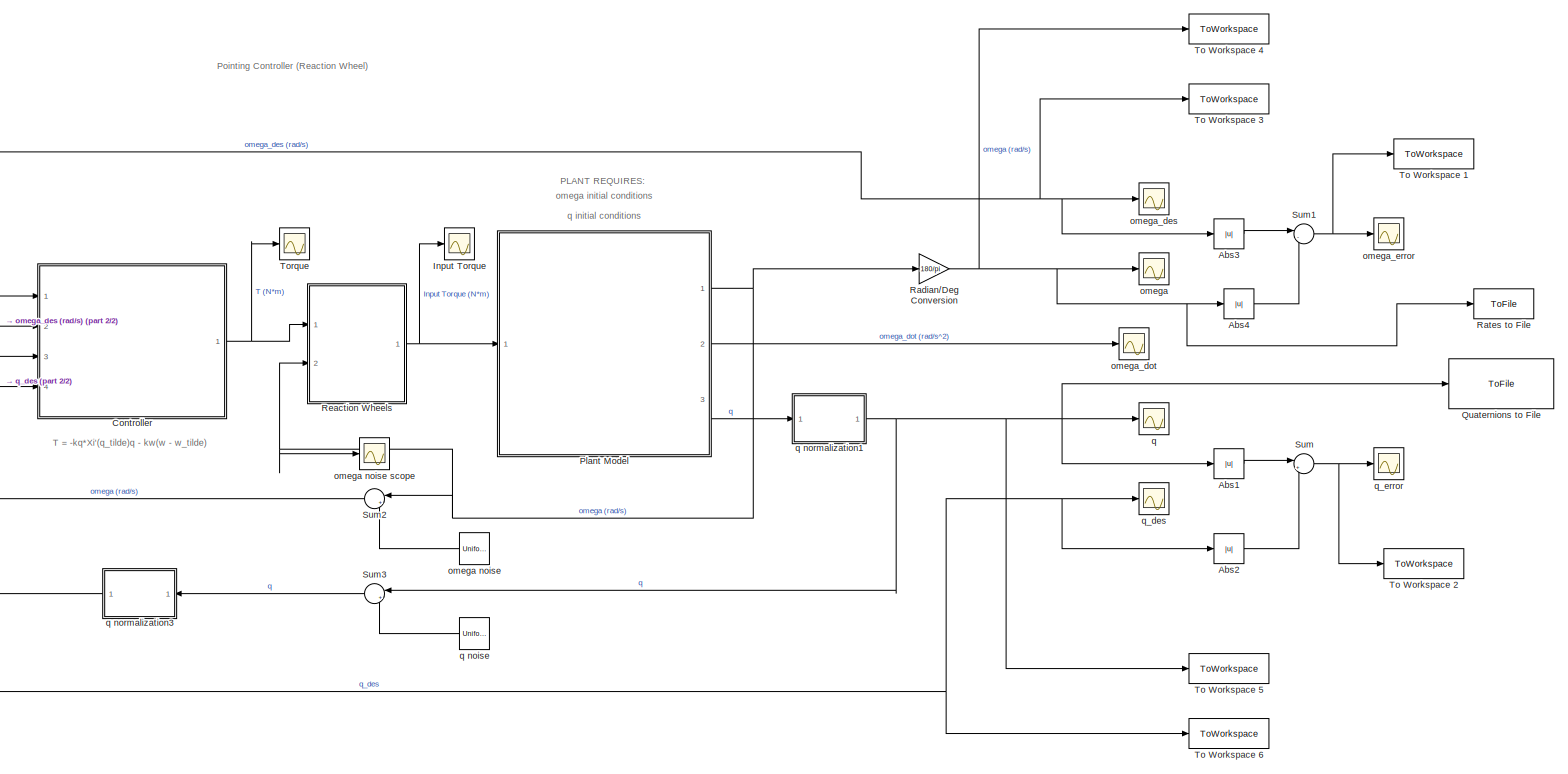
[diagram: root canvas - part 1/2, most of the canvas]
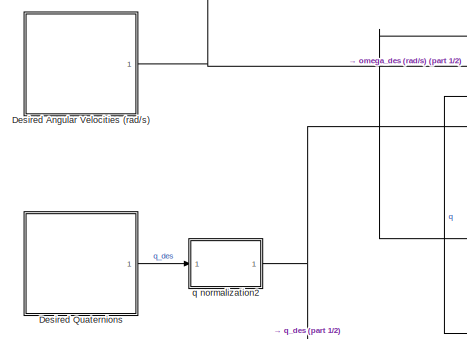
[diagram: root canvas - part 2/2, middle left region]
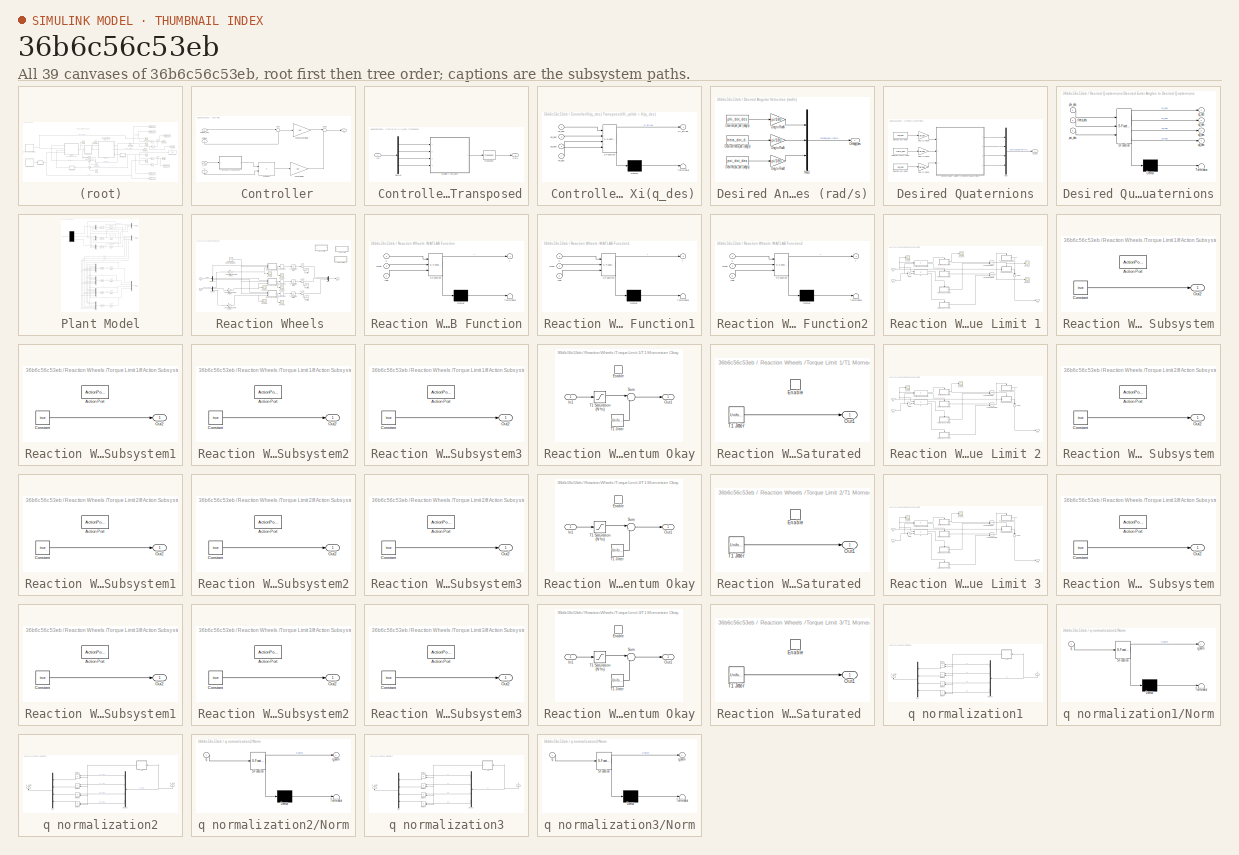
[diagram: thumbnail index - all 39 canvases of the model, root first then tree order]
MODEL slx_36b6c56c53eb
KIND model
BLOCK [SubSystem]  Controller
  FunctionWithSeparateData = off
  MaskHideContents = off
  MinAlgLoopOccurrences = off
  Opaque = off
  Ports = [4, 1]
  PropExecContextOutsideSubsystem = off
  RTWSystemCode = Auto
  RequestExecContextInheritance = off
BLOCK [Product]  Controller/Product
  InputSameDT = off
  Multiplication = Matrix(*)
  OutDataTypeStr = Inherit: Inherit via internal rule
  Ports = [2, 1]
  RndMeth = Floor
  SaturateOnIntegerOverflow = off
BLOCK [Sum]  Controller/Sum
  IconShape = round
  InputSameDT = off
  Inputs = |-+
  OutDataTypeStr = Inherit: Inherit via internal rule
  Ports = [2, 1]
  SaturateOnIntegerOverflow = off
BLOCK [Sum]  Controller/Sum1
  IconShape = round
  InputSameDT = off
  Inputs = |++
  OutDataTypeStr = Inherit: Inherit via internal rule
  Ports = [2, 1]
  SaturateOnIntegerOverflow = off
BLOCK [Outport]  Controller/T
  IconDisplay = Port number
BLOCK [SubSystem]  Controller/Xi(q_des) Transposed
  FunctionWithSeparateData = off
  MaskHideContents = off
  MinAlgLoopOccurrences = off
  Opaque = off
  Ports = [1, 1]
  PropExecContextOutsideSubsystem = off
  RTWSystemCode = Auto
  RequestExecContextInheritance = off
BLOCK [Demux]  Controller/Xi(q_des) Transposed/Demux
  DisplayOption = bar
  Ports = [1, 4]
BLOCK [Inport]  Controller/Xi(q_des) Transposed/In1
  IconDisplay = Port number
BLOCK [Outport]  Controller/Xi(q_des) Transposed/Out1
  IconDisplay = Port number
BLOCK [Reference]  Controller/Xi(q_des) Transposed/Transpose  REF=dspmtrx3/Transpose
  Hermitian = off
  Ports = [1, 1]
  SourceBlock = dspmtrx3/Transpose
  SourceType = Transpose
  overflowFlag = off
BLOCK [SubSystem]  Controller/Xi(q_des) Transposed/Xi_qtilde = Xi(q_des)
  ErrorFcn = Stateflow.Translate.translate
  FunctionWithSeparateData = off
  MaskHideContents = off
  MinAlgLoopOccurrences = off
  Opaque = off
  PermitHierarchicalResolution = ExplicitOnly
  Ports = [4, 1]
  PropExecContextOutsideSubsystem = off
  RTWSystemCode = Auto
  RequestExecContextInheritance = off
  SFBlockType = MATLAB Function
  TreatAsAtomicUnit = on
BLOCK [Demux]  Controller/Xi(q_des) Transposed/Xi_qtilde = Xi(q_des)/ Demux 
  Outputs = 1
  Ports = [1, 1]
BLOCK [S-Function]  Controller/Xi(q_des) Transposed/Xi_qtilde = Xi(q_des)/ SFunction 
  EnableBusSupport = on
  FunctionName = sf_sfun
  PortCounts = [4 2]
  Ports = [4, 2]
  Tag = Stateflow S-Function Pointing_Cntrl_Act 2
BLOCK [Terminator]  Controller/Xi(q_des) Transposed/Xi_qtilde = Xi(q_des)/ Terminator 
BLOCK [Outport]  Controller/Xi(q_des) Transposed/Xi_qtilde = Xi(q_des)/Xi_qtilde
  IconDisplay = Port number
BLOCK [Inport]  Controller/Xi(q_des) Transposed/Xi_qtilde = Xi(q_des)/q1_des
  IconDisplay = Port number
BLOCK [Inport]  Controller/Xi(q_des) Transposed/Xi_qtilde = Xi(q_des)/q2_des
  IconDisplay = Port number
  Port = 2
BLOCK [Inport]  Controller/Xi(q_des) Transposed/Xi_qtilde = Xi(q_des)/q3_des
  IconDisplay = Port number
  Port = 3
BLOCK [Inport]  Controller/Xi(q_des) Transposed/Xi_qtilde = Xi(q_des)/q4_des
  IconDisplay = Port number
  Port = 4
BLOCK [Inport]  Controller/omega
  IconDisplay = Port number
BLOCK [Gain]  Controller/omega Controll Gain
  Gain = -kw
  OutDataTypeStr = Inherit: Inherit via internal rule
  ParamDataTypeStr = Inherit: Inherit via internal rule
  SaturateOnIntegerOverflow = off
BLOCK [Inport]  Controller/omega_des
  IconDisplay = Port number
  Port = 2
BLOCK [Inport]  Controller/q
  IconDisplay = Port number
  Port = 3
BLOCK [Gain]  Controller/q Controll Gain
  Gain = -kq
  OutDataTypeStr = Inherit: Inherit via internal rule
  ParamDataTypeStr = Inherit: Inherit via internal rule
  SaturateOnIntegerOverflow = off
BLOCK [Inport]  Controller/q_des
  IconDisplay = Port number
  Port = 4
BLOCK [Abs] Abs1
  SaturateOnIntegerOverflow = off
BLOCK [Abs] Abs2
  SaturateOnIntegerOverflow = off
BLOCK [Abs] Abs3
  SaturateOnIntegerOverflow = off
BLOCK [Abs] Abs4
  SaturateOnIntegerOverflow = off
BLOCK [SubSystem] Desired Angular Velocities (rad//s)
  FunctionWithSeparateData = off
  MaskHideContents = off
  MinAlgLoopOccurrences = off
  Opaque = off
  Ports = [0, 1]
  PropExecContextOutsideSubsystem = off
  RTWSystemCode = Auto
  RequestExecContextInheritance = off
BLOCK [Gain] Desired Angular Velocities (rad//s)/Deg to Rad4
  Gain = pi/180
  OutDataTypeStr = Inherit: Inherit via internal rule
  ParamDataTypeStr = Inherit: Inherit via internal rule
  SaturateOnIntegerOverflow = off
BLOCK [Gain] Desired Angular Velocities (rad//s)/Deg to Rad5
  Gain = pi/180
  OutDataTypeStr = Inherit: Inherit via internal rule
  ParamDataTypeStr = Inherit: Inherit via internal rule
  SaturateOnIntegerOverflow = off
BLOCK [Gain] Desired Angular Velocities (rad//s)/Deg to Rad6
  Gain = pi/180
  OutDataTypeStr = Inherit: Inherit via internal rule
  ParamDataTypeStr = Inherit: Inherit via internal rule
  SaturateOnIntegerOverflow = off
BLOCK [Constant] Desired Angular Velocities (rad//s)/Desired phi_dot (deg//s)
  Value = phi_dot_des
BLOCK [Constant] Desired Angular Velocities (rad//s)/Desired psi_dot (deg//s)
  Value = psi_dot_des
BLOCK [Constant] Desired Angular Velocities (rad//s)/Desired theta_dot (deg//s)
  Value = theta_dot_des
BLOCK [Mux] Desired Angular Velocities (rad//s)/Mux1
  DisplayOption = bar
  Inputs = 3
  Ports = [3, 1]
BLOCK [Outport] Desired Angular Velocities (rad//s)/Omega_des
  IconDisplay = Port number
BLOCK [SubSystem] Desired Quaternions
  FunctionWithSeparateData = off
  MaskHideContents = off
  MinAlgLoopOccurrences = off
  Opaque = off
  Ports = [0, 1]
  PropExecContextOutsideSubsystem = off
  RTWSystemCode = Auto
  RequestExecContextInheritance = off
BLOCK [Gain] Desired Quaternions/Deg to Rad1
  Gain = pi/180
  OutDataTypeStr = Inherit: Inherit via internal rule
  ParamDataTypeStr = Inherit: Inherit via internal rule
  SaturateOnIntegerOverflow = off
BLOCK [Gain] Desired Quaternions/Deg to Rad2
  Gain = pi/180
  OutDataTypeStr = Inherit: Inherit via internal rule
  ParamDataTypeStr = Inherit: Inherit via internal rule
  SaturateOnIntegerOverflow = off
BLOCK [Gain] Desired Quaternions/Deg to Rad3
  Gain = pi/180
  OutDataTypeStr = Inherit: Inherit via internal rule
  ParamDataTypeStr = Inherit: Inherit via internal rule
  SaturateOnIntegerOverflow = off
BLOCK [SubSystem] Desired Quaternions/Desired Euler Angles to Desired Quaternions
  ErrorFcn = Stateflow.Translate.translate
  FunctionWithSeparateData = off
  MaskHideContents = off
  MinAlgLoopOccurrences = off
  Opaque = off
  PermitHierarchicalResolution = ExplicitOnly
  Ports = [3, 4]
  PropExecContextOutsideSubsystem = off
  RTWSystemCode = Auto
  RequestExecContextInheritance = off
  SFBlockType = MATLAB Function
  TreatAsAtomicUnit = on
BLOCK [Demux] Desired Quaternions/Desired Euler Angles to Desired Quaternions/ Demux 
  Outputs = 1
  Ports = [1, 1]
BLOCK [S-Function] Desired Quaternions/Desired Euler Angles to Desired Quaternions/ SFunction 
  EnableBusSupport = on
  FunctionName = sf_sfun
  PortCounts = [3 5]
  Ports = [3, 5]
  Tag = Stateflow S-Function Pointing_Cntrl_Act 10
BLOCK [Terminator] Desired Quaternions/Desired Euler Angles to Desired Quaternions/ Terminator 
BLOCK [Inport] Desired Quaternions/Desired Euler Angles to Desired Quaternions/phi_des
  IconDisplay = Port number
BLOCK [Inport] Desired Quaternions/Desired Euler Angles to Desired Quaternions/psi_des
  IconDisplay = Port number
  Port = 3
BLOCK [Outport] Desired Quaternions/Desired Euler Angles to Desired Quaternions/q1_des
  IconDisplay = Port number
BLOCK [Outport] Desired Quaternions/Desired Euler Angles to Desired Quaternions/q2_des
  IconDisplay = Port number
  Port = 2
BLOCK [Outport] Desired Quaternions/Desired Euler Angles to Desired Quaternions/q3_des
  IconDisplay = Port number
  Port = 3
BLOCK [Outport] Desired Quaternions/Desired Euler Angles to Desired Quaternions/q4_des
  IconDisplay = Port number
  Port = 4
BLOCK [Inport] Desired Quaternions/Desired Euler Angles to Desired Quaternions/theta_des
  IconDisplay = Port number
  Port = 2
BLOCK [Constant] Desired Quaternions/Desired phi (deg)
  Value = phi_des
BLOCK [Constant] Desired Quaternions/Desired psi (deg)
  Value = psi_des
BLOCK [Constant] Desired Quaternions/Desired theta (deg)
  Value = theta_des
BLOCK [Mux] Desired Quaternions/Mux
  DisplayOption = bar
  Ports = [4, 1]
BLOCK [Outport] Desired Quaternions/q_des
  IconDisplay = Port number
BLOCK [Scope] Input Torque
  DataFormat = StructureWithTime
  Floating = off
  LimitDataPoints = off
  NumInputPorts = 1
  Ports = [1]
  SampleTime = 0
  ShowLegends = off
  TimeRange = 500
  YMax = 0.0007
  YMin = -0.0007
  ZoomMode = xonly
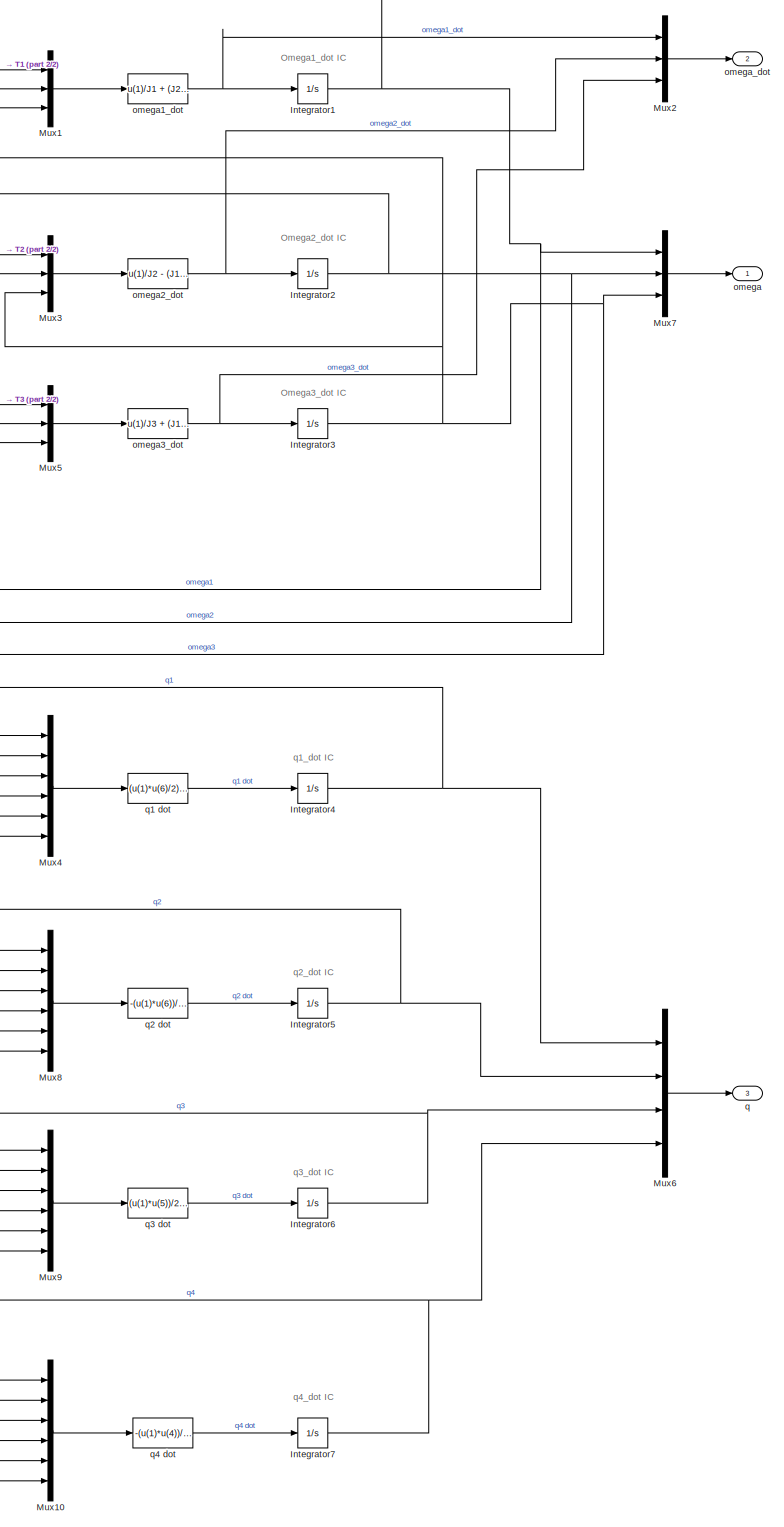
[diagram: Plant Model - part 1/2, right side, full height]
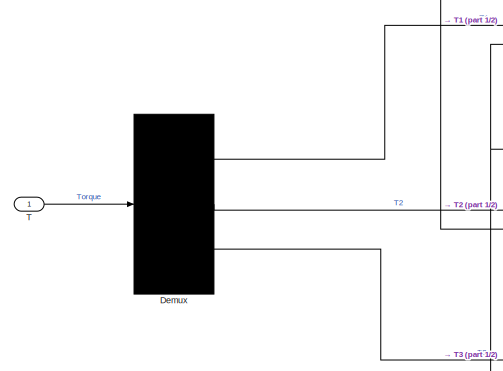
[diagram: Plant Model - part 2/2, top left region]
BLOCK [SubSystem] Plant Model
  FunctionWithSeparateData = off
  MaskHideContents = off
  MinAlgLoopOccurrences = off
  Opaque = off
  Ports = [1, 3]
  PropExecContextOutsideSubsystem = off
  RTWSystemCode = Auto
  RequestExecContextInheritance = off
BLOCK [Demux] Plant Model/Demux
  Outputs = 3
  Ports = [1, 3]
BLOCK [Integrator] Plant Model/Integrator1
  AbsoluteTolerance = 1e-3
  ContinuousStateAttributes = 'omega1'
  InitialCondition = omega1_IC
  Ports = [1, 1]
BLOCK [Integrator] Plant Model/Integrator2
  AbsoluteTolerance = 1e-3
  ContinuousStateAttributes = 'omega2'
  InitialCondition = omega2_IC
  Ports = [1, 1]
BLOCK [Integrator] Plant Model/Integrator3
  AbsoluteTolerance = 1e-3
  ContinuousStateAttributes = 'omega3'
  InitialCondition = omega3_IC
  Ports = [1, 1]
BLOCK [Integrator] Plant Model/Integrator4
  AbsoluteTolerance = 1e-3
  ContinuousStateAttributes = 'omega1'
  InitialCondition = q1_IC
  Ports = [1, 1]
BLOCK [Integrator] Plant Model/Integrator5
  AbsoluteTolerance = 1e-3
  ContinuousStateAttributes = 'omega1'
  InitialCondition = q2_IC
  Ports = [1, 1]
BLOCK [Integrator] Plant Model/Integrator6
  AbsoluteTolerance = 1e-3
  ContinuousStateAttributes = 'omega1'
  InitialCondition = q3_IC
  Ports = [1, 1]
BLOCK [Integrator] Plant Model/Integrator7
  AbsoluteTolerance = 1e-3
  ContinuousStateAttributes = 'omega1'
  InitialCondition = q4_IC
  Ports = [1, 1]
BLOCK [Mux] Plant Model/Mux1
  DisplayOption = bar
  Inputs = 3
  Ports = [3, 1]
BLOCK [Mux] Plant Model/Mux10
  DisplayOption = bar
  Inputs = 6
  Ports = [6, 1]
BLOCK [Mux] Plant Model/Mux2
  DisplayOption = bar
  Inputs = 3
  Ports = [3, 1]
BLOCK [Mux] Plant Model/Mux3
  DisplayOption = bar
  Inputs = 3
  Ports = [3, 1]
BLOCK [Mux] Plant Model/Mux4
  DisplayOption = bar
  Inputs = 6
  Ports = [6, 1]
BLOCK [Mux] Plant Model/Mux5
  DisplayOption = bar
  Inputs = 3
  Ports = [3, 1]
BLOCK [Mux] Plant Model/Mux6
  DisplayOption = bar
  Ports = [4, 1]
BLOCK [Mux] Plant Model/Mux7
  DisplayOption = bar
  Inputs = 3
  Ports = [3, 1]
BLOCK [Mux] Plant Model/Mux8
  DisplayOption = bar
  Inputs = 6
  Ports = [6, 1]
BLOCK [Mux] Plant Model/Mux9
  DisplayOption = bar
  Inputs = 6
  Ports = [6, 1]
BLOCK [Inport] Plant Model/T
  IconDisplay = Port number
BLOCK [Outport] Plant Model/omega
  IconDisplay = Port number
BLOCK [Fcn] Plant Model/omega1_dot
  Expr = u(1)/J1 + (J2*u(2)*u(3))/J1 - (J3*u(2)*u(3))/J1
BLOCK [Fcn] Plant Model/omega2_dot
  Expr = u(1)/J2 - (J1*u(2)*u(3))/J2 + (J3*u(2)*u(3))/J2
BLOCK [Fcn] Plant Model/omega3_dot
  Expr = u(1)/J3 + (J1*u(2)*u(3))/J3 - (J2*u(2)*u(3))/J3
BLOCK [Outport] Plant Model/omega_dot
  IconDisplay = Port number
  Port = 2
BLOCK [Outport] Plant Model/q
  IconDisplay = Port number
  Port = 3
BLOCK [Fcn] Plant Model/q1 dot
  Expr = (u(1)*u(6)/2) - (u(2)*u(5))/2 + (u(3)*u(4))/2
BLOCK [Fcn] Plant Model/q2 dot
  Expr = -(u(1)*u(6))/2 - (u(2)*u(4))/2 + (u(3)*u(5))/2
BLOCK [Fcn] Plant Model/q3 dot
  Expr = (u(1)*u(5))/2 - (u(2)*u(4))/2 + (u(3)*u(6))/2
BLOCK [Fcn] Plant Model/q4 dot
  Expr = -(u(1)*u(4))/2 - (u(2)*u(5))/2 - (u(3)*u(6))/2
BLOCK [ToFile] Quaternions to File
  Filename = quaternions.mat
  MatrixName = quat
  Ports = [1]
BLOCK [Gain] Radian//Deg Conversion
  Gain = 180/pi
  OutDataTypeStr = Inherit: Inherit via internal rule
  ParamDataTypeStr = Inherit: Inherit via internal rule
  SaturateOnIntegerOverflow = off
BLOCK [ToFile] Rates to File
  Filename = rates.mat
  MatrixName = omega
  Ports = [1]
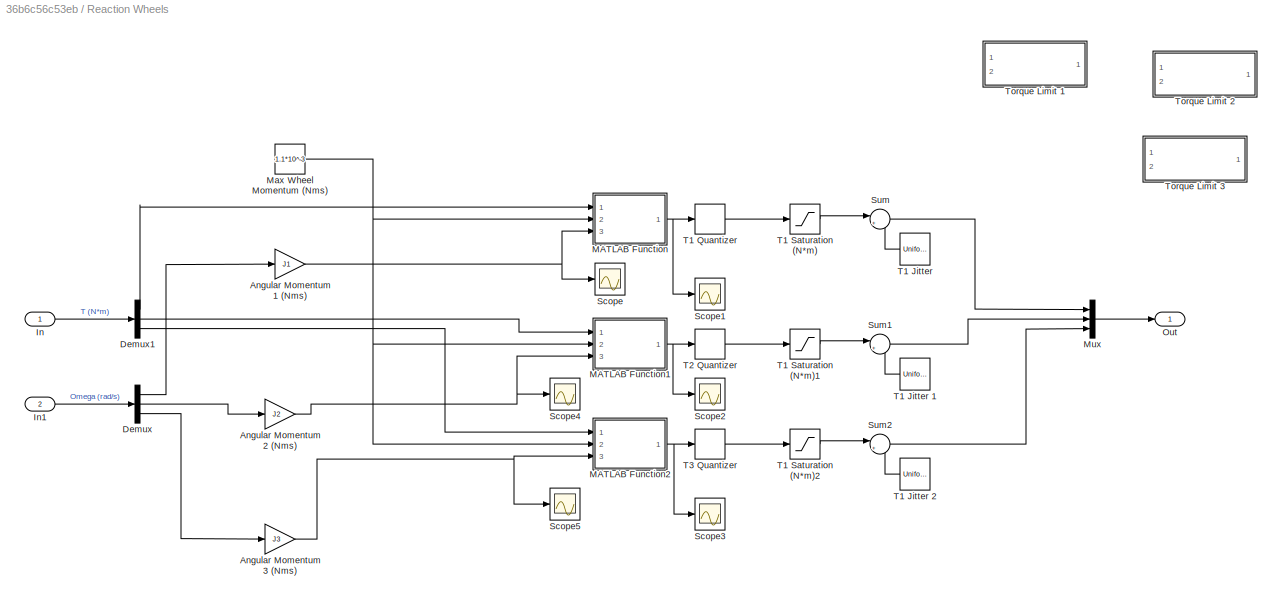
BLOCK [SubSystem] Reaction Wheels 
  FunctionWithSeparateData = off
  MaskHideContents = off
  MinAlgLoopOccurrences = off
  Opaque = off
  Ports = [2, 1]
  PropExecContextOutsideSubsystem = off
  RTWSystemCode = Auto
  RequestExecContextInheritance = off
BLOCK [Gain] Reaction Wheels /Angular Momentum 1 (Nms) 
  Gain = J1
  OutDataTypeStr = Inherit: Inherit via internal rule
  ParamDataTypeStr = Inherit: Inherit via internal rule
  SaturateOnIntegerOverflow = off
BLOCK [Gain] Reaction Wheels /Angular Momentum 2 (Nms)
  Gain = J2
  OutDataTypeStr = Inherit: Inherit via internal rule
  ParamDataTypeStr = Inherit: Inherit via internal rule
  SaturateOnIntegerOverflow = off
BLOCK [Gain] Reaction Wheels /Angular Momentum 3 (Nms)
  Gain = J3
  OutDataTypeStr = Inherit: Inherit via internal rule
  ParamDataTypeStr = Inherit: Inherit via internal rule
  SaturateOnIntegerOverflow = off
BLOCK [Demux] Reaction Wheels /Demux
  DisplayOption = bar
  Outputs = 3
  Ports = [1, 3]
BLOCK [Demux] Reaction Wheels /Demux1
  DisplayOption = bar
  Outputs = 3
  Ports = [1, 3]
BLOCK [Inport] Reaction Wheels /In
  IconDisplay = Port number
BLOCK [Inport] Reaction Wheels /In1
  IconDisplay = Port number
  Port = 2
BLOCK [SubSystem] Reaction Wheels /MATLAB Function
  ErrorFcn = Stateflow.Translate.translate
  FunctionWithSeparateData = off
  MaskHideContents = off
  MinAlgLoopOccurrences = off
  Opaque = off
  PermitHierarchicalResolution = ExplicitOnly
  Ports = [3, 1]
  PropExecContextOutsideSubsystem = off
  RTWSystemCode = Auto
  RequestExecContextInheritance = off
  SFBlockType = MATLAB Function
  TreatAsAtomicUnit = on
BLOCK [Demux] Reaction Wheels /MATLAB Function/ Demux 
  Outputs = 1
  Ports = [1, 1]
BLOCK [S-Function] Reaction Wheels /MATLAB Function/ SFunction 
  EnableBusSupport = on
  FunctionName = sf_sfun
  PortCounts = [3 2]
  Ports = [3, 2]
  Tag = Stateflow S-Function Pointing_Cntrl_Act 1
BLOCK [Terminator] Reaction Wheels /MATLAB Function/ Terminator 
BLOCK [Inport] Reaction Wheels /MATLAB Function/Lmax
  IconDisplay = Port number
  Port = 2
BLOCK [Inport] Reaction Wheels /MATLAB Function/Lsat
  IconDisplay = Port number
  Port = 3
BLOCK [Inport] Reaction Wheels /MATLAB Function/u
  IconDisplay = Port number
BLOCK [Outport] Reaction Wheels /MATLAB Function/y
  IconDisplay = Port number
BLOCK [SubSystem] Reaction Wheels /MATLAB Function1
  ErrorFcn = Stateflow.Translate.translate
  FunctionWithSeparateData = off
  MaskHideContents = off
  MinAlgLoopOccurrences = off
  Opaque = off
  PermitHierarchicalResolution = ExplicitOnly
  Ports = [3, 1]
  PropExecContextOutsideSubsystem = off
  RTWSystemCode = Auto
  RequestExecContextInheritance = off
  SFBlockType = MATLAB Function
  TreatAsAtomicUnit = on
BLOCK [Demux] Reaction Wheels /MATLAB Function1/ Demux 
  Outputs = 1
  Ports = [1, 1]
BLOCK [S-Function] Reaction Wheels /MATLAB Function1/ SFunction 
  EnableBusSupport = on
  FunctionName = sf_sfun
  PortCounts = [3 2]
  Ports = [3, 2]
  Tag = Stateflow S-Function Pointing_Cntrl_Act 4
BLOCK [Terminator] Reaction Wheels /MATLAB Function1/ Terminator 
BLOCK [Inport] Reaction Wheels /MATLAB Function1/Lmax
  IconDisplay = Port number
  Port = 2
BLOCK [Inport] Reaction Wheels /MATLAB Function1/Lsat
  IconDisplay = Port number
  Port = 3
BLOCK [Inport] Reaction Wheels /MATLAB Function1/u
  IconDisplay = Port number
BLOCK [Outport] Reaction Wheels /MATLAB Function1/y
  IconDisplay = Port number
BLOCK [SubSystem] Reaction Wheels /MATLAB Function2
  ErrorFcn = Stateflow.Translate.translate
  FunctionWithSeparateData = off
  MaskHideContents = off
  MinAlgLoopOccurrences = off
  Opaque = off
  PermitHierarchicalResolution = ExplicitOnly
  Ports = [3, 1]
  PropExecContextOutsideSubsystem = off
  RTWSystemCode = Auto
  RequestExecContextInheritance = off
  SFBlockType = MATLAB Function
  TreatAsAtomicUnit = on
BLOCK [Demux] Reaction Wheels /MATLAB Function2/ Demux 
  Outputs = 1
  Ports = [1, 1]
BLOCK [S-Function] Reaction Wheels /MATLAB Function2/ SFunction 
  EnableBusSupport = on
  FunctionName = sf_sfun
  PortCounts = [3 2]
  Ports = [3, 2]
  Tag = Stateflow S-Function Pointing_Cntrl_Act 6
BLOCK [Terminator] Reaction Wheels /MATLAB Function2/ Terminator 
BLOCK [Inport] Reaction Wheels /MATLAB Function2/Lmax
  IconDisplay = Port number
  Port = 2
BLOCK [Inport] Reaction Wheels /MATLAB Function2/Lsat
  IconDisplay = Port number
  Port = 3
BLOCK [Inport] Reaction Wheels /MATLAB Function2/u
  IconDisplay = Port number
BLOCK [Outport] Reaction Wheels /MATLAB Function2/y
  IconDisplay = Port number
BLOCK [Constant] Reaction Wheels /Max Wheel Momentum (Nms) 
  Value = 1.1*10^-3
BLOCK [Mux] Reaction Wheels /Mux
  DisplayOption = bar
  Inputs = 3
  Ports = [3, 1]
BLOCK [Outport] Reaction Wheels /Out
  IconDisplay = Port number
BLOCK [Scope] Reaction Wheels /Scope
  DataFormat = StructureWithTime
  Floating = off
  NumInputPorts = 1
  Ports = [1]
  SampleTime = 0
  SaveName = ScopeData11
  ShowLegends = off
  YMax = 0.0175
  YMin = -0.0075
BLOCK [Scope] Reaction Wheels /Scope1
  DataFormat = StructureWithTime
  Floating = off
  LimitDataPoints = off
  NumInputPorts = 1
  Ports = [1]
  SampleTime = 0
  SaveName = ScopeData12
  ShowLegends = off
  YMax = 0.5
  YMin = -7.5
BLOCK [Scope] Reaction Wheels /Scope2
  DataFormat = StructureWithTime
  Floating = off
  LimitDataPoints = off
  NumInputPorts = 1
  Ports = [1]
  SampleTime = 0
  SaveName = ScopeData13
  ShowLegends = off
  YMax = 0.0175
  YMin = -0.0075
BLOCK [Scope] Reaction Wheels /Scope3
  DataFormat = StructureWithTime
  Floating = off
  LimitDataPoints = off
  NumInputPorts = 1
  Ports = [1]
  SampleTime = 0
  SaveName = ScopeData14
  ShowLegends = off
  YMax = 0.0175
  YMin = -0.0075
BLOCK [Scope] Reaction Wheels /Scope4
  DataFormat = StructureWithTime
  Floating = off
  NumInputPorts = 1
  Ports = [1]
  SampleTime = 0
  SaveName = ScopeData15
  ShowLegends = off
  YMax = 0.0175
  YMin = -0.0075
BLOCK [Scope] Reaction Wheels /Scope5
  DataFormat = StructureWithTime
  Floating = off
  NumInputPorts = 1
  Ports = [1]
  SampleTime = 0
  SaveName = ScopeData16
  ShowLegends = off
  YMax = 0.0005
  YMin = -0.0005
BLOCK [Sum] Reaction Wheels /Sum
  IconShape = round
  InputSameDT = off
  Inputs = |++
  OutDataTypeStr = Inherit: Inherit via internal rule
  Ports = [2, 1]
  SaturateOnIntegerOverflow = off
BLOCK [Sum] Reaction Wheels /Sum1
  IconShape = round
  InputSameDT = off
  Inputs = |++
  OutDataTypeStr = Inherit: Inherit via internal rule
  Ports = [2, 1]
  SaturateOnIntegerOverflow = off
BLOCK [Sum] Reaction Wheels /Sum2
  IconShape = round
  InputSameDT = off
  Inputs = |++
  OutDataTypeStr = Inherit: Inherit via internal rule
  Ports = [2, 1]
  SaturateOnIntegerOverflow = off
BLOCK [UniformRandomNumber] Reaction Wheels /T1 Jitter 
  Maximum = 0.0005*10^-3
  Minimum = -0.0005*10^-3
  SampleTime = ts
BLOCK [UniformRandomNumber] Reaction Wheels /T1 Jitter 1
  Maximum = 0.001*10^-3
  Minimum = -0.0005*10^-3
  SampleTime = ts
BLOCK [UniformRandomNumber] Reaction Wheels /T1 Jitter 2
  Maximum = 0.001*10^-3
  Minimum = -0.0005*10^-3
  SampleTime = ts
BLOCK [Quantizer] Reaction Wheels /T1 Quantizer
  QuantizationInterval = 0.02*10^-3
BLOCK [Saturate] Reaction Wheels /T1 Saturation (N*m)
  InputPortMap = u0
  LowerLimit = -0.635/1000
  Ports = [1, 1]
  UpperLimit = 0.635/1000
BLOCK [Saturate] Reaction Wheels /T1 Saturation (N*m)1
  InputPortMap = u0
  LowerLimit = -0.635/1000
  Ports = [1, 1]
  UpperLimit = 0.635/1000
BLOCK [Saturate] Reaction Wheels /T1 Saturation (N*m)2
  InputPortMap = u0
  LowerLimit = -0.635/1000
  Ports = [1, 1]
  UpperLimit = 0.635/1000
BLOCK [Quantizer] Reaction Wheels /T2 Quantizer
  QuantizationInterval = 0.02*10^-3
BLOCK [Quantizer] Reaction Wheels /T3 Quantizer
  QuantizationInterval = 0.02*10^-3
BLOCK [SubSystem] Reaction Wheels /Torque Limit 1
  Commented = on
  FunctionWithSeparateData = off
  MaskHideContents = off
  MinAlgLoopOccurrences = off
  Opaque = off
  Ports = [2, 1]
  PropExecContextOutsideSubsystem = off
  RTWSystemCode = Auto
  RequestExecContextInheritance = off
  TreatAsAtomicUnit = on
BLOCK [Gain] Reaction Wheels /Torque Limit 1/Gain
  Gain = -1
  OutDataTypeStr = Inherit: Inherit via internal rule
  ParamDataTypeStr = Inherit: Inherit via internal rule
  SaturateOnIntegerOverflow = off
BLOCK [If] Reaction Wheels /Torque Limit 1/If
  IfExpression = u1 > u2
  NumInputs = 2
  Ports = [2, 2]
BLOCK [SubSystem] Reaction Wheels /Torque Limit 1/If Action Subsystem
  FunctionWithSeparateData = off
  MaskHideContents = off
  MinAlgLoopOccurrences = off
  Opaque = off
  Ports = [0, 1, 0, 0, 0, 0, 0, 1]
  PropExecContextOutsideSubsystem = off
  RTWSystemCode = Auto
  RequestExecContextInheritance = off
  TreatAsAtomicUnit = on
BLOCK [ActionPort] Reaction Wheels /Torque Limit 1/If Action Subsystem/Action Port
  InitializeStates = reset
BLOCK [Constant] Reaction Wheels /Torque Limit 1/If Action Subsystem/Constant
  OutDataTypeStr = boolean
  Value = true
BLOCK [Outport] Reaction Wheels /Torque Limit 1/If Action Subsystem/Out2
  IconDisplay = Port number
  InitialOutput = [false]
  OutDataTypeStr = boolean
  OutputWhenDisabled = reset
BLOCK [SubSystem] Reaction Wheels /Torque Limit 1/If Action Subsystem1
  FunctionWithSeparateData = off
  MaskHideContents = off
  MinAlgLoopOccurrences = off
  Opaque = off
  Ports = [0, 1, 0, 0, 0, 0, 0, 1]
  PropExecContextOutsideSubsystem = off
  RTWSystemCode = Auto
  RequestExecContextInheritance = off
  TreatAsAtomicUnit = on
BLOCK [ActionPort] Reaction Wheels /Torque Limit 1/If Action Subsystem1/Action Port
  InitializeStates = reset
BLOCK [Constant] Reaction Wheels /Torque Limit 1/If Action Subsystem1/Constant
  OutDataTypeStr = boolean
  Value = true
BLOCK [Outport] Reaction Wheels /Torque Limit 1/If Action Subsystem1/Out2
  IconDisplay = Port number
  InitialOutput = [false]
  OutDataTypeStr = boolean
  OutputWhenDisabled = reset
BLOCK [SubSystem] Reaction Wheels /Torque Limit 1/If Action Subsystem2
  FunctionWithSeparateData = off
  MaskHideContents = off
  MinAlgLoopOccurrences = off
  Opaque = off
  Ports = [0, 1, 0, 0, 0, 0, 0, 1]
  PropExecContextOutsideSubsystem = off
  RTWSystemCode = Auto
  RequestExecContextInheritance = off
  TreatAsAtomicUnit = on
BLOCK [ActionPort] Reaction Wheels /Torque Limit 1/If Action Subsystem2/Action Port
  InitializeStates = reset
BLOCK [Constant] Reaction Wheels /Torque Limit 1/If Action Subsystem2/Constant
  OutDataTypeStr = boolean
  Value = true
BLOCK [Outport] Reaction Wheels /Torque Limit 1/If Action Subsystem2/Out2
  IconDisplay = Port number
  InitialOutput = [false]
  OutDataTypeStr = boolean
  OutputWhenDisabled = reset
BLOCK [SubSystem] Reaction Wheels /Torque Limit 1/If Action Subsystem3
  FunctionWithSeparateData = off
  MaskHideContents = off
  MinAlgLoopOccurrences = off
  Opaque = off
  Ports = [0, 1, 0, 0, 0, 0, 0, 1]
  PropExecContextOutsideSubsystem = off
  RTWSystemCode = Auto
  RequestExecContextInheritance = off
  TreatAsAtomicUnit = on
BLOCK [ActionPort] Reaction Wheels /Torque Limit 1/If Action Subsystem3/Action Port
  InitializeStates = reset
BLOCK [Constant] Reaction Wheels /Torque Limit 1/If Action Subsystem3/Constant
  OutDataTypeStr = boolean
  Value = true
BLOCK [Outport] Reaction Wheels /Torque Limit 1/If Action Subsystem3/Out2
  IconDisplay = Port number
  InitialOutput = [false]
  OutDataTypeStr = boolean
  OutputWhenDisabled = reset
BLOCK [Inport] Reaction Wheels /Torque Limit 1/In1
  IconDisplay = Port number
BLOCK [Inport] Reaction Wheels /Torque Limit 1/In2
  IconDisplay = Port number
  Port = 2
BLOCK [Logic] Reaction Wheels /Torque Limit 1/Logical Operator
  AllPortsSameDT = off
  OutDataTypeStr = boolean
  Ports = [2, 1]
BLOCK [Logic] Reaction Wheels /Torque Limit 1/Logical Operator1
  AllPortsSameDT = off
  Operator = OR
  OutDataTypeStr = boolean
  Ports = [2, 1]
BLOCK [Outport] Reaction Wheels /Torque Limit 1/Out1
  IconDisplay = Port number
BLOCK [If] Reaction Wheels /Torque Limit 1/Positive Momentum Limit 1
  IfExpression = u2 > u1
  NumInputs = 2
  Ports = [2, 2]
BLOCK [Scope] Reaction Wheels /Torque Limit 1/Scope
  DataFormat = StructureWithTime
  Floating = off
  LimitDataPoints = off
  NumInputPorts = 1
  Ports = [1]
  SampleTime = 0
  SaveName = ScopeData17
  ShowLegends = off
  YMax = 8
  YMin = -1.5
BLOCK [Scope] Reaction Wheels /Torque Limit 1/Scope1
  DataFormat = StructureWithTime
  Floating = off
  NumInputPorts = 1
  Ports = [1]
  SampleTime = 0
  SaveName = ScopeData18
  ShowLegends = off
  YMax = 8
  YMin = -1.5
BLOCK [Scope] Reaction Wheels /Torque Limit 1/Scope2
  DataFormat = StructureWithTime
  Floating = off
  LimitDataPoints = off
  NumInputPorts = 1
  Ports = [1]
  SampleTime = 0
  SaveName = ScopeData19
  ShowLegends = off
  YMax = 8
  YMin = -1.5
BLOCK [Scope] Reaction Wheels /Torque Limit 1/Scope3
  DataFormat = StructureWithTime
  Floating = off
  LimitDataPoints = off
  NumInputPorts = 1
  Ports = [1]
  SampleTime = 0
  SaveName = ScopeData20
  ShowLegends = off
  YMax = 8
  YMin = -1.5
BLOCK [Sum] Reaction Wheels /Torque Limit 1/Sum3
  IconShape = round
  InputSameDT = off
  Inputs = |++
  OutDataTypeStr = Inherit: Inherit via internal rule
  Ports = [2, 1]
  SaturateOnIntegerOverflow = off
BLOCK [SubSystem] Reaction Wheels /Torque Limit 1/T1 Momentum Okay
  FunctionWithSeparateData = off
  MaskHideContents = off
  MinAlgLoopOccurrences = off
  Opaque = off
  Ports = [1, 1, 1]
  PropExecContextOutsideSubsystem = off
  RTWSystemCode = Auto
  RequestExecContextInheritance = off
  TreatAsAtomicUnit = on
BLOCK [EnablePort] Reaction Wheels /Torque Limit 1/T1 Momentum Okay/Enable
  Ports = []
  StatesWhenEnabling = reset
BLOCK [Inport] Reaction Wheels /Torque Limit 1/T1 Momentum Okay/In1
  IconDisplay = Port number
BLOCK [Outport] Reaction Wheels /Torque Limit 1/T1 Momentum Okay/Out1
  IconDisplay = Port number
  InitialOutput = [0]
BLOCK [Sum] Reaction Wheels /Torque Limit 1/T1 Momentum Okay/Sum
  IconShape = round
  InputSameDT = off
  Inputs = |++
  OutDataTypeStr = Inherit: Inherit via internal rule
  Ports = [2, 1]
  SaturateOnIntegerOverflow = off
BLOCK [UniformRandomNumber] Reaction Wheels /Torque Limit 1/T1 Momentum Okay/T1 Jitter 
  Maximum = 0.005
  Minimum = -0.005
  SampleTime = ts
BLOCK [Saturate] Reaction Wheels /Torque Limit 1/T1 Momentum Okay/T1 Saturation (N*m)
  InputPortMap = u0
  LowerLimit = -0.635/1000
  Ports = [1, 1]
  UpperLimit = 0.635/1000
BLOCK [SubSystem] Reaction Wheels /Torque Limit 1/T1 Momentum Saturated 
  FunctionWithSeparateData = off
  MaskHideContents = off
  MinAlgLoopOccurrences = off
  Opaque = off
  Ports = [0, 1, 1]
  PropExecContextOutsideSubsystem = off
  RTWSystemCode = Auto
  RequestExecContextInheritance = off
  TreatAsAtomicUnit = on
BLOCK [EnablePort] Reaction Wheels /Torque Limit 1/T1 Momentum Saturated /Enable
  Ports = []
  StatesWhenEnabling = reset
BLOCK [Outport] Reaction Wheels /Torque Limit 1/T1 Momentum Saturated /Out1
  IconDisplay = Port number
  InitialOutput = [0]
BLOCK [UniformRandomNumber] Reaction Wheels /Torque Limit 1/T1 Momentum Saturated /T1 Jitter 
  Maximum = 0.005
  Minimum = -0.005
  SampleTime = ts
BLOCK [SubSystem] Reaction Wheels /Torque Limit 2
  Commented = on
  FunctionWithSeparateData = off
  MaskHideContents = off
  MinAlgLoopOccurrences = off
  Opaque = off
  Ports = [2, 1]
  PropExecContextOutsideSubsystem = off
  RTWSystemCode = Auto
  RequestExecContextInheritance = off
  TreatAsAtomicUnit = on
BLOCK [Gain] Reaction Wheels /Torque Limit 2/Gain
  Gain = -1
  OutDataTypeStr = Inherit: Inherit via internal rule
  ParamDataTypeStr = Inherit: Inherit via internal rule
  SaturateOnIntegerOverflow = off
BLOCK [If] Reaction Wheels /Torque Limit 2/If
  IfExpression = u1 > u2
  NumInputs = 2
  Ports = [2, 2]
BLOCK [SubSystem] Reaction Wheels /Torque Limit 2/If Action Subsystem
  FunctionWithSeparateData = off
  MaskHideContents = off
  MinAlgLoopOccurrences = off
  Opaque = off
  Ports = [0, 1, 0, 0, 0, 0, 0, 1]
  PropExecContextOutsideSubsystem = off
  RTWSystemCode = Auto
  RequestExecContextInheritance = off
  TreatAsAtomicUnit = on
BLOCK [ActionPort] Reaction Wheels /Torque Limit 2/If Action Subsystem/Action Port
  InitializeStates = reset
BLOCK [Constant] Reaction Wheels /Torque Limit 2/If Action Subsystem/Constant
  OutDataTypeStr = boolean
  Value = true
BLOCK [Outport] Reaction Wheels /Torque Limit 2/If Action Subsystem/Out2
  IconDisplay = Port number
  InitialOutput = [false]
  OutDataTypeStr = boolean
  OutputWhenDisabled = reset
BLOCK [SubSystem] Reaction Wheels /Torque Limit 2/If Action Subsystem1
  FunctionWithSeparateData = off
  MaskHideContents = off
  MinAlgLoopOccurrences = off
  Opaque = off
  Ports = [0, 1, 0, 0, 0, 0, 0, 1]
  PropExecContextOutsideSubsystem = off
  RTWSystemCode = Auto
  RequestExecContextInheritance = off
  TreatAsAtomicUnit = on
BLOCK [ActionPort] Reaction Wheels /Torque Limit 2/If Action Subsystem1/Action Port
  InitializeStates = reset
BLOCK [Constant] Reaction Wheels /Torque Limit 2/If Action Subsystem1/Constant
  OutDataTypeStr = boolean
  Value = true
BLOCK [Outport] Reaction Wheels /Torque Limit 2/If Action Subsystem1/Out2
  IconDisplay = Port number
  InitialOutput = [false]
  OutDataTypeStr = boolean
  OutputWhenDisabled = reset
BLOCK [SubSystem] Reaction Wheels /Torque Limit 2/If Action Subsystem2
  FunctionWithSeparateData = off
  MaskHideContents = off
  MinAlgLoopOccurrences = off
  Opaque = off
  Ports = [0, 1, 0, 0, 0, 0, 0, 1]
  PropExecContextOutsideSubsystem = off
  RTWSystemCode = Auto
  RequestExecContextInheritance = off
  TreatAsAtomicUnit = on
BLOCK [ActionPort] Reaction Wheels /Torque Limit 2/If Action Subsystem2/Action Port
  InitializeStates = reset
BLOCK [Constant] Reaction Wheels /Torque Limit 2/If Action Subsystem2/Constant
  OutDataTypeStr = boolean
  Value = true
BLOCK [Outport] Reaction Wheels /Torque Limit 2/If Action Subsystem2/Out2
  IconDisplay = Port number
  InitialOutput = [false]
  OutDataTypeStr = boolean
  OutputWhenDisabled = reset
BLOCK [SubSystem] Reaction Wheels /Torque Limit 2/If Action Subsystem3
  FunctionWithSeparateData = off
  MaskHideContents = off
  MinAlgLoopOccurrences = off
  Opaque = off
  Ports = [0, 1, 0, 0, 0, 0, 0, 1]
  PropExecContextOutsideSubsystem = off
  RTWSystemCode = Auto
  RequestExecContextInheritance = off
  TreatAsAtomicUnit = on
BLOCK [ActionPort] Reaction Wheels /Torque Limit 2/If Action Subsystem3/Action Port
  InitializeStates = reset
BLOCK [Constant] Reaction Wheels /Torque Limit 2/If Action Subsystem3/Constant
  OutDataTypeStr = boolean
  Value = true
BLOCK [Outport] Reaction Wheels /Torque Limit 2/If Action Subsystem3/Out2
  IconDisplay = Port number
  InitialOutput = [false]
  OutDataTypeStr = boolean
  OutputWhenDisabled = reset
BLOCK [Inport] Reaction Wheels /Torque Limit 2/In1
  IconDisplay = Port number
BLOCK [Inport] Reaction Wheels /Torque Limit 2/In2
  IconDisplay = Port number
  Port = 2
BLOCK [Logic] Reaction Wheels /Torque Limit 2/Logical Operator
  AllPortsSameDT = off
  OutDataTypeStr = boolean
  Ports = [2, 1]
BLOCK [Logic] Reaction Wheels /Torque Limit 2/Logical Operator1
  AllPortsSameDT = off
  Operator = OR
  OutDataTypeStr = boolean
  Ports = [2, 1]
BLOCK [Outport] Reaction Wheels /Torque Limit 2/Out1
  IconDisplay = Port number
BLOCK [If] Reaction Wheels /Torque Limit 2/Positive Momentum Limit 1
  IfExpression = u2 > u1
  NumInputs = 2
  Ports = [2, 2]
BLOCK [Scope] Reaction Wheels /Torque Limit 2/Scope
  DataFormat = StructureWithTime
  Floating = off
  LimitDataPoints = off
  NumInputPorts = 1
  Ports = [1]
  SampleTime = 0
  SaveName = ScopeData17
  ShowLegends = off
  YMax = 8
  YMin = -1.5
BLOCK [Scope] Reaction Wheels /Torque Limit 2/Scope1
  DataFormat = StructureWithTime
  Floating = off
  NumInputPorts = 1
  Ports = [1]
  SampleTime = 0
  SaveName = ScopeData18
  ShowLegends = off
  YMax = 8
  YMin = -1.5
BLOCK [Sum] Reaction Wheels /Torque Limit 2/Sum3
  IconShape = round
  InputSameDT = off
  Inputs = |++
  OutDataTypeStr = Inherit: Inherit via internal rule
  Ports = [2, 1]
  SaturateOnIntegerOverflow = off
BLOCK [SubSystem] Reaction Wheels /Torque Limit 2/T1 Momentum Okay
  FunctionWithSeparateData = off
  MaskHideContents = off
  MinAlgLoopOccurrences = off
  Opaque = off
  Ports = [1, 1, 1]
  PropExecContextOutsideSubsystem = off
  RTWSystemCode = Auto
  RequestExecContextInheritance = off
  TreatAsAtomicUnit = on
BLOCK [EnablePort] Reaction Wheels /Torque Limit 2/T1 Momentum Okay/Enable
  Ports = []
  StatesWhenEnabling = reset
BLOCK [Inport] Reaction Wheels /Torque Limit 2/T1 Momentum Okay/In1
  IconDisplay = Port number
BLOCK [Outport] Reaction Wheels /Torque Limit 2/T1 Momentum Okay/Out1
  IconDisplay = Port number
  InitialOutput = [0]
BLOCK [Sum] Reaction Wheels /Torque Limit 2/T1 Momentum Okay/Sum
  IconShape = round
  InputSameDT = off
  Inputs = |++
  OutDataTypeStr = Inherit: Inherit via internal rule
  Ports = [2, 1]
  SaturateOnIntegerOverflow = off
BLOCK [UniformRandomNumber] Reaction Wheels /Torque Limit 2/T1 Momentum Okay/T1 Jitter 
  Maximum = 0.005
  Minimum = -0.005
  SampleTime = ts
BLOCK [Saturate] Reaction Wheels /Torque Limit 2/T1 Momentum Okay/T1 Saturation (N*m)
  InputPortMap = u0
  LowerLimit = -0.635/1000
  Ports = [1, 1]
  UpperLimit = 0.635/1000
BLOCK [SubSystem] Reaction Wheels /Torque Limit 2/T1 Momentum Saturated 
  FunctionWithSeparateData = off
  MaskHideContents = off
  MinAlgLoopOccurrences = off
  Opaque = off
  Ports = [0, 1, 1]
  PropExecContextOutsideSubsystem = off
  RTWSystemCode = Auto
  RequestExecContextInheritance = off
  TreatAsAtomicUnit = on
BLOCK [EnablePort] Reaction Wheels /Torque Limit 2/T1 Momentum Saturated /Enable
  Ports = []
  StatesWhenEnabling = reset
BLOCK [Outport] Reaction Wheels /Torque Limit 2/T1 Momentum Saturated /Out1
  IconDisplay = Port number
  InitialOutput = [0]
BLOCK [UniformRandomNumber] Reaction Wheels /Torque Limit 2/T1 Momentum Saturated /T1 Jitter 
  Maximum = 0.005
  Minimum = -0.005
  SampleTime = ts
BLOCK [SubSystem] Reaction Wheels /Torque Limit 3
  Commented = on
  FunctionWithSeparateData = off
  MaskHideContents = off
  MinAlgLoopOccurrences = off
  Opaque = off
  Ports = [2, 1]
  PropExecContextOutsideSubsystem = off
  RTWSystemCode = Auto
  RequestExecContextInheritance = off
  TreatAsAtomicUnit = on
BLOCK [Gain] Reaction Wheels /Torque Limit 3/Gain
  Gain = -1
  OutDataTypeStr = Inherit: Inherit via internal rule
  ParamDataTypeStr = Inherit: Inherit via internal rule
  SaturateOnIntegerOverflow = off
BLOCK [If] Reaction Wheels /Torque Limit 3/If
  IfExpression = u1 > u2
  NumInputs = 2
  Ports = [2, 2]
BLOCK [SubSystem] Reaction Wheels /Torque Limit 3/If Action Subsystem
  FunctionWithSeparateData = off
  MaskHideContents = off
  MinAlgLoopOccurrences = off
  Opaque = off
  Ports = [0, 1, 0, 0, 0, 0, 0, 1]
  PropExecContextOutsideSubsystem = off
  RTWSystemCode = Auto
  RequestExecContextInheritance = off
  TreatAsAtomicUnit = on
BLOCK [ActionPort] Reaction Wheels /Torque Limit 3/If Action Subsystem/Action Port
  InitializeStates = reset
BLOCK [Constant] Reaction Wheels /Torque Limit 3/If Action Subsystem/Constant
  OutDataTypeStr = boolean
  Value = true
BLOCK [Outport] Reaction Wheels /Torque Limit 3/If Action Subsystem/Out2
  IconDisplay = Port number
  InitialOutput = [false]
  OutDataTypeStr = boolean
  OutputWhenDisabled = reset
BLOCK [SubSystem] Reaction Wheels /Torque Limit 3/If Action Subsystem1
  FunctionWithSeparateData = off
  MaskHideContents = off
  MinAlgLoopOccurrences = off
  Opaque = off
  Ports = [0, 1, 0, 0, 0, 0, 0, 1]
  PropExecContextOutsideSubsystem = off
  RTWSystemCode = Auto
  RequestExecContextInheritance = off
  TreatAsAtomicUnit = on
BLOCK [ActionPort] Reaction Wheels /Torque Limit 3/If Action Subsystem1/Action Port
  InitializeStates = reset
BLOCK [Constant] Reaction Wheels /Torque Limit 3/If Action Subsystem1/Constant
  OutDataTypeStr = boolean
  Value = true
BLOCK [Outport] Reaction Wheels /Torque Limit 3/If Action Subsystem1/Out2
  IconDisplay = Port number
  InitialOutput = [false]
  OutDataTypeStr = boolean
  OutputWhenDisabled = reset
BLOCK [SubSystem] Reaction Wheels /Torque Limit 3/If Action Subsystem2
  FunctionWithSeparateData = off
  MaskHideContents = off
  MinAlgLoopOccurrences = off
  Opaque = off
  Ports = [0, 1, 0, 0, 0, 0, 0, 1]
  PropExecContextOutsideSubsystem = off
  RTWSystemCode = Auto
  RequestExecContextInheritance = off
  TreatAsAtomicUnit = on
BLOCK [ActionPort] Reaction Wheels /Torque Limit 3/If Action Subsystem2/Action Port
  InitializeStates = reset
BLOCK [Constant] Reaction Wheels /Torque Limit 3/If Action Subsystem2/Constant
  OutDataTypeStr = boolean
  Value = true
BLOCK [Outport] Reaction Wheels /Torque Limit 3/If Action Subsystem2/Out2
  IconDisplay = Port number
  InitialOutput = [false]
  OutDataTypeStr = boolean
  OutputWhenDisabled = reset
BLOCK [SubSystem] Reaction Wheels /Torque Limit 3/If Action Subsystem3
  FunctionWithSeparateData = off
  MaskHideContents = off
  MinAlgLoopOccurrences = off
  Opaque = off
  Ports = [0, 1, 0, 0, 0, 0, 0, 1]
  PropExecContextOutsideSubsystem = off
  RTWSystemCode = Auto
  RequestExecContextInheritance = off
  TreatAsAtomicUnit = on
BLOCK [ActionPort] Reaction Wheels /Torque Limit 3/If Action Subsystem3/Action Port
  InitializeStates = reset
BLOCK [Constant] Reaction Wheels /Torque Limit 3/If Action Subsystem3/Constant
  OutDataTypeStr = boolean
  Value = true
BLOCK [Outport] Reaction Wheels /Torque Limit 3/If Action Subsystem3/Out2
  IconDisplay = Port number
  InitialOutput = [false]
  OutDataTypeStr = boolean
  OutputWhenDisabled = reset
BLOCK [Inport] Reaction Wheels /Torque Limit 3/In1
  IconDisplay = Port number
BLOCK [Inport] Reaction Wheels /Torque Limit 3/In2
  IconDisplay = Port number
  Port = 2
BLOCK [Logic] Reaction Wheels /Torque Limit 3/Logical Operator
  AllPortsSameDT = off
  OutDataTypeStr = boolean
  Ports = [2, 1]
BLOCK [Logic] Reaction Wheels /Torque Limit 3/Logical Operator1
  AllPortsSameDT = off
  Operator = OR
  OutDataTypeStr = boolean
  Ports = [2, 1]
BLOCK [Outport] Reaction Wheels /Torque Limit 3/Out1
  IconDisplay = Port number
BLOCK [If] Reaction Wheels /Torque Limit 3/Positive Momentum Limit 1
  IfExpression = u2 > u1
  NumInputs = 2
  Ports = [2, 2]
BLOCK [Scope] Reaction Wheels /Torque Limit 3/Scope
  DataFormat = StructureWithTime
  Floating = off
  LimitDataPoints = off
  NumInputPorts = 1
  Ports = [1]
  SampleTime = 0
  SaveName = ScopeData17
  ShowLegends = off
  YMax = 8
  YMin = -1.5
BLOCK [Scope] Reaction Wheels /Torque Limit 3/Scope1
  DataFormat = StructureWithTime
  Floating = off
  NumInputPorts = 1
  Ports = [1]
  SampleTime = 0
  SaveName = ScopeData18
  ShowLegends = off
  YMax = 8
  YMin = -1.5
BLOCK [Sum] Reaction Wheels /Torque Limit 3/Sum3
  IconShape = round
  InputSameDT = off
  Inputs = |++
  OutDataTypeStr = Inherit: Inherit via internal rule
  Ports = [2, 1]
  SaturateOnIntegerOverflow = off
BLOCK [SubSystem] Reaction Wheels /Torque Limit 3/T1 Momentum Okay
  FunctionWithSeparateData = off
  MaskHideContents = off
  MinAlgLoopOccurrences = off
  Opaque = off
  Ports = [1, 1, 1]
  PropExecContextOutsideSubsystem = off
  RTWSystemCode = Auto
  RequestExecContextInheritance = off
  TreatAsAtomicUnit = on
BLOCK [EnablePort] Reaction Wheels /Torque Limit 3/T1 Momentum Okay/Enable
  Ports = []
  StatesWhenEnabling = reset
BLOCK [Inport] Reaction Wheels /Torque Limit 3/T1 Momentum Okay/In1
  IconDisplay = Port number
BLOCK [Outport] Reaction Wheels /Torque Limit 3/T1 Momentum Okay/Out1
  IconDisplay = Port number
  InitialOutput = [0]
BLOCK [Sum] Reaction Wheels /Torque Limit 3/T1 Momentum Okay/Sum
  IconShape = round
  InputSameDT = off
  Inputs = |++
  OutDataTypeStr = Inherit: Inherit via internal rule
  Ports = [2, 1]
  SaturateOnIntegerOverflow = off
BLOCK [UniformRandomNumber] Reaction Wheels /Torque Limit 3/T1 Momentum Okay/T1 Jitter 
  Maximum = 0.005
  Minimum = -0.005
  SampleTime = ts
BLOCK [Saturate] Reaction Wheels /Torque Limit 3/T1 Momentum Okay/T1 Saturation (N*m)
  InputPortMap = u0
  LowerLimit = -0.635/1000
  Ports = [1, 1]
  UpperLimit = 0.635/1000
BLOCK [SubSystem] Reaction Wheels /Torque Limit 3/T1 Momentum Saturated 
  FunctionWithSeparateData = off
  MaskHideContents = off
  MinAlgLoopOccurrences = off
  Opaque = off
  Ports = [0, 1, 1]
  PropExecContextOutsideSubsystem = off
  RTWSystemCode = Auto
  RequestExecContextInheritance = off
  TreatAsAtomicUnit = on
BLOCK [EnablePort] Reaction Wheels /Torque Limit 3/T1 Momentum Saturated /Enable
  Ports = []
  StatesWhenEnabling = reset
BLOCK [Outport] Reaction Wheels /Torque Limit 3/T1 Momentum Saturated /Out1
  IconDisplay = Port number
  InitialOutput = [0]
BLOCK [UniformRandomNumber] Reaction Wheels /Torque Limit 3/T1 Momentum Saturated /T1 Jitter 
  Maximum = 0.005
  Minimum = -0.005
  SampleTime = ts
BLOCK [Sum] Sum
  IconShape = round
  InputSameDT = off
  Inputs = |+-
  OutDataTypeStr = Inherit: Inherit via internal rule
  Ports = [2, 1]
  SaturateOnIntegerOverflow = off
BLOCK [Sum] Sum1
  IconShape = round
  InputSameDT = off
  Inputs = |-+
  OutDataTypeStr = Inherit: Inherit via internal rule
  Ports = [2, 1]
  SaturateOnIntegerOverflow = off
BLOCK [Sum] Sum2
  IconShape = round
  InputSameDT = off
  Inputs = |++
  OutDataTypeStr = Inherit: Inherit via internal rule
  Ports = [2, 1]
  SaturateOnIntegerOverflow = off
BLOCK [Sum] Sum3
  IconShape = round
  InputSameDT = off
  Inputs = |++
  OutDataTypeStr = Inherit: Inherit via internal rule
  Ports = [2, 1]
  SaturateOnIntegerOverflow = off
BLOCK [ToWorkspace] To Workspace 1
  MaxDataPoints = inf
  Ports = [1]
  SampleTime = -1
  SaveFormat = Timeseries
  VariableName = omega_error
BLOCK [ToWorkspace] To Workspace 2
  MaxDataPoints = inf
  Ports = [1]
  SampleTime = -1
  SaveFormat = Timeseries
  VariableName = q_error
BLOCK [ToWorkspace] To Workspace 3
  MaxDataPoints = inf
  Ports = [1]
  SampleTime = -1
  SaveFormat = Timeseries
  VariableName = omega_des
BLOCK [ToWorkspace] To Workspace 4
  MaxDataPoints = inf
  Ports = [1]
  SampleTime = -1
  SaveFormat = Timeseries
  VariableName = omega_actual
BLOCK [ToWorkspace] To Workspace 5
  MaxDataPoints = inf
  Ports = [1]
  SampleTime = -1
  SaveFormat = Timeseries
  VariableName = q_actual
BLOCK [ToWorkspace] To Workspace 6
  MaxDataPoints = inf
  Ports = [1]
  SampleTime = -1
  SaveFormat = Timeseries
  VariableName = q_des
BLOCK [Scope] Torque
  DataFormat = StructureWithTime
  Floating = off
  LimitDataPoints = off
  NumInputPorts = 1
  Ports = [1]
  SampleTime = 0
  SaveName = ScopeData5
  ShowLegends = off
  TimeRange = 500
  YMax = 0.275
  YMin = -0.25
BLOCK [Scope] omega
  DataFormat = StructureWithTime
  Floating = off
  LimitDataPoints = off
  NumInputPorts = 1
  Ports = [1]
  SampleTime = 0
  SaveName = ScopeData3
  ShowLegends = off
  TimeRange = 500
  YMax = 10
  YMin = -15
  ZoomMode = xonly
BLOCK [UniformRandomNumber] omega noise
  Maximum = .035
  Minimum = -.035
  SampleTime = ts
BLOCK [Scope] omega noise scope
  DataFormat = StructureWithTime
  Floating = off
  LimitDataPoints = off
  NumInputPorts = 1
  Ports = [1]
  SampleTime = 0
  SaveName = ScopeData10
  ShowLegends = off
  TimeRange = 500
  YMax = 0.3
  YMin = -0.55
  ZoomMode = xonly
BLOCK [Scope] omega_des
  DataFormat = StructureWithTime
  Floating = off
  NumInputPorts = 1
  Ports = [1]
  SampleTime = 0
  SaveName = ScopeData8
  ShowLegends = off
  YMax = 0.0525
  YMin = -0.0025
BLOCK [Scope] omega_dot
  DataFormat = StructureWithTime
  Floating = off
  LimitDataPoints = off
  NumInputPorts = 1
  Ports = [1]
  SampleTime = 0
  SaveName = ScopeData1
  ShowLegends = off
  TimeRange = 3600
  YMax = -2.5e-05
  YMin = -0.0004
BLOCK [Scope] omega_error
  DataFormat = StructureWithTime
  Floating = off
  LimitDataPoints = off
  NumInputPorts = 1
  Ports = [1]
  SampleTime = 0
  SaveName = ScopeData7
  ShowLegends = off
  TimeRange = 500
  YMax = 3.25
  YMin = 0
  ZoomMode = yonly
BLOCK [Scope] q
  DataFormat = StructureWithTime
  Floating = off
  LimitDataPoints = off
  NumInputPorts = 1
  Ports = [1]
  SampleTime = 0
  SaveName = ScopeData2
  ShowLegends = off
  TimeRange = 500
  YMax = 0.775
  YMin = 0.225
  ZoomMode = yonly
BLOCK [UniformRandomNumber] q noise
  Maximum = .006
  Minimum = -.006
  SampleTime = ts
BLOCK [SubSystem] q normalization1
  FunctionWithSeparateData = off
  MaskHideContents = off
  MinAlgLoopOccurrences = off
  Opaque = off
  Ports = [1, 1]
  PropExecContextOutsideSubsystem = off
  RTWSystemCode = Auto
  RequestExecContextInheritance = off
BLOCK [Demux] q normalization1/Demux
  DisplayOption = bar
  Ports = [1, 4]
BLOCK [Product] q normalization1/Divide1
  InputSameDT = off
  Inputs = */
  OutDataTypeStr = Inherit: Inherit via internal rule
  Ports = [2, 1]
  RndMeth = Floor
  SaturateOnIntegerOverflow = off
BLOCK [Product] q normalization1/Divide2
  InputSameDT = off
  Inputs = */
  OutDataTypeStr = Inherit: Inherit via internal rule
  Ports = [2, 1]
  RndMeth = Floor
  SaturateOnIntegerOverflow = off
BLOCK [Product] q normalization1/Divide3
  InputSameDT = off
  Inputs = */
  OutDataTypeStr = Inherit: Inherit via internal rule
  Ports = [2, 1]
  RndMeth = Floor
  SaturateOnIntegerOverflow = off
BLOCK [Product] q normalization1/Divide4
  InputSameDT = off
  Inputs = */
  OutDataTypeStr = Inherit: Inherit via internal rule
  Ports = [2, 1]
  RndMeth = Floor
  SaturateOnIntegerOverflow = off
BLOCK [Mux] q normalization1/Mux
  DisplayOption = bar
  Ports = [4, 1]
BLOCK [SubSystem] q normalization1/Norm
  ErrorFcn = Stateflow.Translate.translate
  FunctionWithSeparateData = off
  MaskHideContents = off
  MinAlgLoopOccurrences = off
  Opaque = off
  PermitHierarchicalResolution = ExplicitOnly
  Ports = [1, 1]
  PropExecContextOutsideSubsystem = off
  RTWSystemCode = Auto
  RequestExecContextInheritance = off
  SFBlockType = MATLAB Function
  TreatAsAtomicUnit = on
BLOCK [Demux] q normalization1/Norm/ Demux 
  Outputs = 1
  Ports = [1, 1]
BLOCK [S-Function] q normalization1/Norm/ SFunction 
  EnableBusSupport = on
  FunctionName = sf_sfun
  PortCounts = [1 2]
  Ports = [1, 2]
  Tag = Stateflow S-Function Pointing_Cntrl_Act 7
BLOCK [Terminator] q normalization1/Norm/ Terminator 
BLOCK [Inport] q normalization1/Norm/q
  IconDisplay = Port number
BLOCK [Outport] q normalization1/Norm/q_norm
  IconDisplay = Port number
BLOCK [Inport] q normalization1/q
  IconDisplay = Port number
BLOCK [Outport] q normalization1/q_norm
  IconDisplay = Port number
BLOCK [SubSystem] q normalization2
  FunctionWithSeparateData = off
  MaskHideContents = off
  MinAlgLoopOccurrences = off
  Opaque = off
  Ports = [1, 1]
  PropExecContextOutsideSubsystem = off
  RTWSystemCode = Auto
  RequestExecContextInheritance = off
BLOCK [Demux] q normalization2/Demux
  DisplayOption = bar
  Ports = [1, 4]
BLOCK [Product] q normalization2/Divide1
  InputSameDT = off
  Inputs = */
  OutDataTypeStr = Inherit: Inherit via internal rule
  Ports = [2, 1]
  RndMeth = Floor
  SaturateOnIntegerOverflow = off
BLOCK [Product] q normalization2/Divide2
  InputSameDT = off
  Inputs = */
  OutDataTypeStr = Inherit: Inherit via internal rule
  Ports = [2, 1]
  RndMeth = Floor
  SaturateOnIntegerOverflow = off
BLOCK [Product] q normalization2/Divide3
  InputSameDT = off
  Inputs = */
  OutDataTypeStr = Inherit: Inherit via internal rule
  Ports = [2, 1]
  RndMeth = Floor
  SaturateOnIntegerOverflow = off
BLOCK [Product] q normalization2/Divide4
  InputSameDT = off
  Inputs = */
  OutDataTypeStr = Inherit: Inherit via internal rule
  Ports = [2, 1]
  RndMeth = Floor
  SaturateOnIntegerOverflow = off
BLOCK [Mux] q normalization2/Mux
  DisplayOption = bar
  Ports = [4, 1]
BLOCK [SubSystem] q normalization2/Norm
  ErrorFcn = Stateflow.Translate.translate
  FunctionWithSeparateData = off
  MaskHideContents = off
  MinAlgLoopOccurrences = off
  Opaque = off
  PermitHierarchicalResolution = ExplicitOnly
  Ports = [1, 1]
  PropExecContextOutsideSubsystem = off
  RTWSystemCode = Auto
  RequestExecContextInheritance = off
  SFBlockType = MATLAB Function
  TreatAsAtomicUnit = on
BLOCK [Demux] q normalization2/Norm/ Demux 
  Outputs = 1
  Ports = [1, 1]
BLOCK [S-Function] q normalization2/Norm/ SFunction 
  EnableBusSupport = on
  FunctionName = sf_sfun
  PortCounts = [1 2]
  Ports = [1, 2]
  Tag = Stateflow S-Function Pointing_Cntrl_Act 3
BLOCK [Terminator] q normalization2/Norm/ Terminator 
BLOCK [Inport] q normalization2/Norm/q
  IconDisplay = Port number
BLOCK [Outport] q normalization2/Norm/q_norm
  IconDisplay = Port number
BLOCK [Inport] q normalization2/q_des
  IconDisplay = Port number
BLOCK [Outport] q normalization2/q_norm
  IconDisplay = Port number
BLOCK [SubSystem] q normalization3
  FunctionWithSeparateData = off
  MaskHideContents = off
  MinAlgLoopOccurrences = off
  Opaque = off
  Ports = [1, 1]
  PropExecContextOutsideSubsystem = off
  RTWSystemCode = Auto
  RequestExecContextInheritance = off
BLOCK [Demux] q normalization3/Demux
  DisplayOption = bar
  Ports = [1, 4]
BLOCK [Product] q normalization3/Divide1
  InputSameDT = off
  Inputs = */
  OutDataTypeStr = Inherit: Inherit via internal rule
  Ports = [2, 1]
  RndMeth = Floor
  SaturateOnIntegerOverflow = off
BLOCK [Product] q normalization3/Divide2
  InputSameDT = off
  Inputs = */
  OutDataTypeStr = Inherit: Inherit via internal rule
  Ports = [2, 1]
  RndMeth = Floor
  SaturateOnIntegerOverflow = off
BLOCK [Product] q normalization3/Divide3
  InputSameDT = off
  Inputs = */
  OutDataTypeStr = Inherit: Inherit via internal rule
  Ports = [2, 1]
  RndMeth = Floor
  SaturateOnIntegerOverflow = off
BLOCK [Product] q normalization3/Divide4
  InputSameDT = off
  Inputs = */
  OutDataTypeStr = Inherit: Inherit via internal rule
  Ports = [2, 1]
  RndMeth = Floor
  SaturateOnIntegerOverflow = off
BLOCK [Mux] q normalization3/Mux
  DisplayOption = bar
  Ports = [4, 1]
BLOCK [SubSystem] q normalization3/Norm
  ErrorFcn = Stateflow.Translate.translate
  FunctionWithSeparateData = off
  MaskHideContents = off
  MinAlgLoopOccurrences = off
  Opaque = off
  PermitHierarchicalResolution = ExplicitOnly
  Ports = [1, 1]
  PropExecContextOutsideSubsystem = off
  RTWSystemCode = Auto
  RequestExecContextInheritance = off
  SFBlockType = MATLAB Function
  TreatAsAtomicUnit = on
BLOCK [Demux] q normalization3/Norm/ Demux 
  Outputs = 1
  Ports = [1, 1]
BLOCK [S-Function] q normalization3/Norm/ SFunction 
  EnableBusSupport = on
  FunctionName = sf_sfun
  PortCounts = [1 2]
  Ports = [1, 2]
  Tag = Stateflow S-Function Pointing_Cntrl_Act 5
BLOCK [Terminator] q normalization3/Norm/ Terminator 
BLOCK [Inport] q normalization3/Norm/q
  IconDisplay = Port number
BLOCK [Outport] q normalization3/Norm/q_norm
  IconDisplay = Port number
BLOCK [Inport] q normalization3/q
  IconDisplay = Port number
BLOCK [Outport] q normalization3/q_norm
  IconDisplay = Port number
BLOCK [Scope] q_des
  DataFormat = StructureWithTime
  Floating = off
  LimitDataPoints = off
  NumInputPorts = 1
  Ports = [1]
  SampleTime = 0
  SaveName = ScopeData4
  ShowLegends = off
  TimeRange = 3600
  YMax = 0.75
  YMin = 0.25
BLOCK [Scope] q_error
  DataFormat = StructureWithTime
  Floating = off
  LimitDataPoints = off
  NumInputPorts = 1
  Ports = [1]
  SampleTime = 0
  SaveName = ScopeData6
  ShowLegends = off
  TimeRange = 3600
  YMax = 1e-12
  YMin = -2e-12
  ZoomMode = yonly
ANNOTATION (root): PLANT REQUIRES:
ANNOTATION (root): Pointing Controller (Reaction Wheel)
ANNOTATION (root): T = -kq*Xi'(q_tilde)q - kw(w - w_tilde)
ANNOTATION (root): omega initial conditions
ANNOTATION (root): q initial conditions
ANNOTATION Plant Model: Omega1_dot IC
ANNOTATION Plant Model: Omega2_dot IC
ANNOTATION Plant Model: Omega3_dot IC
ANNOTATION Plant Model: q1_dot IC
ANNOTATION Plant Model: q2_dot IC
ANNOTATION Plant Model: q3_dot IC
ANNOTATION Plant Model: q4_dot IC
LINE  Controller/Product:1 ->  Controller/q Controll Gain:1
LINE  Controller/Sum1:1 ->  Controller/T:1
LINE  Controller/Sum:1 ->  Controller/omega Controll Gain:1
LINE  Controller/Xi(q_des) Transposed/Demux:1 ->  Controller/Xi(q_des) Transposed/Xi_qtilde = Xi(q_des):1
LINE  Controller/Xi(q_des) Transposed/Demux:2 ->  Controller/Xi(q_des) Transposed/Xi_qtilde = Xi(q_des):2
LINE  Controller/Xi(q_des) Transposed/Demux:3 ->  Controller/Xi(q_des) Transposed/Xi_qtilde = Xi(q_des):3
LINE  Controller/Xi(q_des) Transposed/Demux:4 ->  Controller/Xi(q_des) Transposed/Xi_qtilde = Xi(q_des):4
LINE  Controller/Xi(q_des) Transposed/In1:1 ->  Controller/Xi(q_des) Transposed/Demux:1
LINE  Controller/Xi(q_des) Transposed/Transpose:1 ->  Controller/Xi(q_des) Transposed/Out1:1
LINE  Controller/Xi(q_des) Transposed/Xi_qtilde = Xi(q_des):1 ->  Controller/Xi(q_des) Transposed/Transpose:1
LINE  Controller/Xi(q_des) Transposed:1 ->  Controller/Product:1
LINE  Controller/omega Controll Gain:1 ->  Controller/Sum1:1
LINE  Controller/omega:1 ->  Controller/Sum:2
LINE  Controller/omega_des:1 ->  Controller/Sum:1
LINE  Controller/q Controll Gain:1 ->  Controller/Sum1:2
LINE  Controller/q:1 ->  Controller/Product:2
LINE  Controller/q_des:1 ->  Controller/Xi(q_des) Transposed:1
NET  Controller:1 -> Reaction Wheels :1, Torque:1
LINE Abs1:1 -> Sum:1
LINE Abs2:1 -> Sum:2
LINE Abs3:1 -> Sum1:1
LINE Abs4:1 -> Sum1:2
LINE Desired Angular Velocities (rad//s)/Deg to Rad4:1 -> Desired Angular Velocities (rad//s)/Mux1:3
LINE Desired Angular Velocities (rad//s)/Deg to Rad5:1 -> Desired Angular Velocities (rad//s)/Mux1:2
LINE Desired Angular Velocities (rad//s)/Deg to Rad6:1 -> Desired Angular Velocities (rad//s)/Mux1:1
LINE Desired Angular Velocities (rad//s)/Desired phi_dot (deg//s):1 -> Desired Angular Velocities (rad//s)/Deg to Rad6:1
LINE Desired Angular Velocities (rad//s)/Desired psi_dot (deg//s):1 -> Desired Angular Velocities (rad//s)/Deg to Rad4:1
LINE Desired Angular Velocities (rad//s)/Desired theta_dot (deg//s):1 -> Desired Angular Velocities (rad//s)/Deg to Rad5:1
LINE Desired Angular Velocities (rad//s)/Mux1:1 -> Desired Angular Velocities (rad//s)/Omega_des:1
NET Desired Angular Velocities (rad//s):1 ->  Controller:2, Abs3:1, To Workspace 3:1, omega_des:1
LINE Desired Quaternions/Deg to Rad1:1 -> Desired Quaternions/Desired Euler Angles to Desired Quaternions:3
LINE Desired Quaternions/Deg to Rad2:1 -> Desired Quaternions/Desired Euler Angles to Desired Quaternions:2
LINE Desired Quaternions/Deg to Rad3:1 -> Desired Quaternions/Desired Euler Angles to Desired Quaternions:1
LINE Desired Quaternions/Desired Euler Angles to Desired Quaternions:1 -> Desired Quaternions/Mux:1
LINE Desired Quaternions/Desired Euler Angles to Desired Quaternions:2 -> Desired Quaternions/Mux:2
LINE Desired Quaternions/Desired Euler Angles to Desired Quaternions:3 -> Desired Quaternions/Mux:3
LINE Desired Quaternions/Desired Euler Angles to Desired Quaternions:4 -> Desired Quaternions/Mux:4
LINE Desired Quaternions/Desired phi (deg):1 -> Desired Quaternions/Deg to Rad3:1
LINE Desired Quaternions/Desired psi (deg):1 -> Desired Quaternions/Deg to Rad1:1
LINE Desired Quaternions/Desired theta (deg):1 -> Desired Quaternions/Deg to Rad2:1
LINE Desired Quaternions/Mux:1 -> Desired Quaternions/q_des:1
LINE Desired Quaternions:1 -> q normalization2:1
LINE Plant Model/Demux:1 -> Plant Model/Mux1:1
LINE Plant Model/Demux:2 -> Plant Model/Mux3:1
LINE Plant Model/Demux:3 -> Plant Model/Mux5:1
NET Plant Model/Integrator1:1 -> Plant Model/Mux10:4, Plant Model/Mux3:2, Plant Model/Mux4:4, Plant Model/Mux5:2, Plant Model/Mux7:1, Plant Model/Mux8:4, Plant Model/Mux9:4
NET Plant Model/Integrator2:1 -> Plant Model/Mux10:5, Plant Model/Mux1:2, Plant Model/Mux4:5, Plant Model/Mux5:3, Plant Model/Mux7:2, Plant Model/Mux8:5, Plant Model/Mux9:5
NET Plant Model/Integrator3:1 -> Plant Model/Mux10:6, Plant Model/Mux1:3, Plant Model/Mux3:3, Plant Model/Mux4:6, Plant Model/Mux7:3, Plant Model/Mux8:6, Plant Model/Mux9:6
NET Plant Model/Integrator4:1 -> Plant Model/Mux10:1, Plant Model/Mux6:1, Plant Model/Mux8:1, Plant Model/Mux9:1
NET Plant Model/Integrator5:1 -> Plant Model/Mux10:2, Plant Model/Mux4:1, Plant Model/Mux6:2, Plant Model/Mux9:2
NET Plant Model/Integrator6:1 -> Plant Model/Mux10:3, Plant Model/Mux4:2, Plant Model/Mux6:3, Plant Model/Mux8:2
NET Plant Model/Integrator7:1 -> Plant Model/Mux4:3, Plant Model/Mux6:4, Plant Model/Mux8:3, Plant Model/Mux9:3
LINE Plant Model/Mux10:1 -> Plant Model/q4 dot:1
LINE Plant Model/Mux1:1 -> Plant Model/omega1_dot:1
LINE Plant Model/Mux2:1 -> Plant Model/omega_dot:1
LINE Plant Model/Mux3:1 -> Plant Model/omega2_dot:1
LINE Plant Model/Mux4:1 -> Plant Model/q1 dot:1
LINE Plant Model/Mux5:1 -> Plant Model/omega3_dot:1
LINE Plant Model/Mux6:1 -> Plant Model/q:1
LINE Plant Model/Mux7:1 -> Plant Model/omega:1
LINE Plant Model/Mux8:1 -> Plant Model/q2 dot:1
LINE Plant Model/Mux9:1 -> Plant Model/q3 dot:1
LINE Plant Model/T:1 -> Plant Model/Demux:1
NET Plant Model/omega1_dot:1 -> Plant Model/Integrator1:1, Plant Model/Mux2:1
NET Plant Model/omega2_dot:1 -> Plant Model/Integrator2:1, Plant Model/Mux2:2
NET Plant Model/omega3_dot:1 -> Plant Model/Integrator3:1, Plant Model/Mux2:3
LINE Plant Model/q1 dot:1 -> Plant Model/Integrator4:1
LINE Plant Model/q2 dot:1 -> Plant Model/Integrator5:1
LINE Plant Model/q3 dot:1 -> Plant Model/Integrator6:1
LINE Plant Model/q4 dot:1 -> Plant Model/Integrator7:1
NET Plant Model:1 -> Radian//Deg Conversion:1, Reaction Wheels :2, Sum2:1, omega noise scope:1
LINE Plant Model:2 -> omega_dot:1
LINE Plant Model:3 -> q normalization1:1
NET Radian//Deg Conversion:1 -> Abs4:1, Rates to File:1, To Workspace 4:1, omega:1
NET Reaction Wheels /Angular Momentum 1 (Nms) :1 -> Reaction Wheels /MATLAB Function:3, Reaction Wheels /Scope:1
NET Reaction Wheels /Angular Momentum 2 (Nms):1 -> Reaction Wheels /MATLAB Function1:3, Reaction Wheels /Scope4:1
NET Reaction Wheels /Angular Momentum 3 (Nms):1 -> Reaction Wheels /MATLAB Function2:3, Reaction Wheels /Scope5:1
LINE Reaction Wheels /Demux1:1 -> Reaction Wheels /MATLAB Function:1
LINE Reaction Wheels /Demux1:2 -> Reaction Wheels /MATLAB Function1:1
LINE Reaction Wheels /Demux1:3 -> Reaction Wheels /MATLAB Function2:1
LINE Reaction Wheels /Demux:1 -> Reaction Wheels /Angular Momentum 1 (Nms) :1
LINE Reaction Wheels /Demux:2 -> Reaction Wheels /Angular Momentum 2 (Nms):1
LINE Reaction Wheels /Demux:3 -> Reaction Wheels /Angular Momentum 3 (Nms):1
LINE Reaction Wheels /In1:1 -> Reaction Wheels /Demux:1
LINE Reaction Wheels /In:1 -> Reaction Wheels /Demux1:1
NET Reaction Wheels /MATLAB Function1:1 -> Reaction Wheels /Scope2:1, Reaction Wheels /T2 Quantizer:1
NET Reaction Wheels /MATLAB Function2:1 -> Reaction Wheels /Scope3:1, Reaction Wheels /T3 Quantizer:1
NET Reaction Wheels /MATLAB Function:1 -> Reaction Wheels /Scope1:1, Reaction Wheels /T1 Quantizer:1
NET Reaction Wheels /Max Wheel Momentum (Nms) :1 -> Reaction Wheels /MATLAB Function1:2, Reaction Wheels /MATLAB Function2:2, Reaction Wheels /MATLAB Function:2
LINE Reaction Wheels /Mux:1 -> Reaction Wheels /Out:1
LINE Reaction Wheels /Sum1:1 -> Reaction Wheels /Mux:2
LINE Reaction Wheels /Sum2:1 -> Reaction Wheels /Mux:3
LINE Reaction Wheels /Sum:1 -> Reaction Wheels /Mux:1
LINE Reaction Wheels /T1 Jitter 1:1 -> Reaction Wheels /Sum1:2
LINE Reaction Wheels /T1 Jitter 2:1 -> Reaction Wheels /Sum2:2
LINE Reaction Wheels /T1 Jitter :1 -> Reaction Wheels /Sum:2
LINE Reaction Wheels /T1 Quantizer:1 -> Reaction Wheels /T1 Saturation (N*m):1
LINE Reaction Wheels /T1 Saturation (N*m)1:1 -> Reaction Wheels /Sum1:1
LINE Reaction Wheels /T1 Saturation (N*m)2:1 -> Reaction Wheels /Sum2:1
LINE Reaction Wheels /T1 Saturation (N*m):1 -> Reaction Wheels /Sum:1
LINE Reaction Wheels /T2 Quantizer:1 -> Reaction Wheels /T1 Saturation (N*m)1:1
LINE Reaction Wheels /T3 Quantizer:1 -> Reaction Wheels /T1 Saturation (N*m)2:1
LINE Reaction Wheels /Torque Limit 1/Gain:1 -> Reaction Wheels /Torque Limit 1/If:2
LINE Reaction Wheels /Torque Limit 1/If Action Subsystem/Constant:1 -> Reaction Wheels /Torque Limit 1/If Action Subsystem/Out2:1
LINE Reaction Wheels /Torque Limit 1/If Action Subsystem1/Constant:1 -> Reaction Wheels /Torque Limit 1/If Action Subsystem1/Out2:1
LINE Reaction Wheels /Torque Limit 1/If Action Subsystem1:1 -> Reaction Wheels /Torque Limit 1/Logical Operator1:1
LINE Reaction Wheels /Torque Limit 1/If Action Subsystem2/Constant:1 -> Reaction Wheels /Torque Limit 1/If Action Subsystem2/Out2:1
LINE Reaction Wheels /Torque Limit 1/If Action Subsystem2:1 -> Reaction Wheels /Torque Limit 1/Logical Operator:2
LINE Reaction Wheels /Torque Limit 1/If Action Subsystem3/Constant:1 -> Reaction Wheels /Torque Limit 1/If Action Subsystem3/Out2:1
LINE Reaction Wheels /Torque Limit 1/If Action Subsystem3:1 -> Reaction Wheels /Torque Limit 1/Logical Operator1:2
NET Reaction Wheels /Torque Limit 1/If Action Subsystem:1 -> Reaction Wheels /Torque Limit 1/Logical Operator:1, Reaction Wheels /Torque Limit 1/Scope1:1
LINE Reaction Wheels /Torque Limit 1/If:1 -> Reaction Wheels /Torque Limit 1/If Action Subsystem2:ifaction
LINE Reaction Wheels /Torque Limit 1/If:2 -> Reaction Wheels /Torque Limit 1/If Action Subsystem3:ifaction
NET Reaction Wheels /Torque Limit 1/In1:1 -> Reaction Wheels /Torque Limit 1/If:1, Reaction Wheels /Torque Limit 1/Positive Momentum Limit 1:1, Reaction Wheels /Torque Limit 1/Scope:1, Reaction Wheels /Torque Limit 1/T1 Momentum Okay:1
NET Reaction Wheels /Torque Limit 1/In2:1 -> Reaction Wheels /Torque Limit 1/Gain:1, Reaction Wheels /Torque Limit 1/Positive Momentum Limit 1:2
NET Reaction Wheels /Torque Limit 1/Logical Operator1:1 -> Reaction Wheels /Torque Limit 1/Scope3:1, Reaction Wheels /Torque Limit 1/T1 Momentum Saturated :enable
NET Reaction Wheels /Torque Limit 1/Logical Operator:1 -> Reaction Wheels /Torque Limit 1/Scope2:1, Reaction Wheels /Torque Limit 1/T1 Momentum Okay:enable
LINE Reaction Wheels /Torque Limit 1/Positive Momentum Limit 1:1 -> Reaction Wheels /Torque Limit 1/If Action Subsystem:ifaction
LINE Reaction Wheels /Torque Limit 1/Positive Momentum Limit 1:2 -> Reaction Wheels /Torque Limit 1/If Action Subsystem1:ifaction
LINE Reaction Wheels /Torque Limit 1/Sum3:1 -> Reaction Wheels /Torque Limit 1/Out1:1
LINE Reaction Wheels /Torque Limit 1/T1 Momentum Okay/In1:1 -> Reaction Wheels /Torque Limit 1/T1 Momentum Okay/T1 Saturation (N*m):1
LINE Reaction Wheels /Torque Limit 1/T1 Momentum Okay/Sum:1 -> Reaction Wheels /Torque Limit 1/T1 Momentum Okay/Out1:1
LINE Reaction Wheels /Torque Limit 1/T1 Momentum Okay/T1 Jitter :1 -> Reaction Wheels /Torque Limit 1/T1 Momentum Okay/Sum:2
LINE Reaction Wheels /Torque Limit 1/T1 Momentum Okay/T1 Saturation (N*m):1 -> Reaction Wheels /Torque Limit 1/T1 Momentum Okay/Sum:1
LINE Reaction Wheels /Torque Limit 1/T1 Momentum Okay:1 -> Reaction Wheels /Torque Limit 1/Sum3:1
LINE Reaction Wheels /Torque Limit 1/T1 Momentum Saturated /T1 Jitter :1 -> Reaction Wheels /Torque Limit 1/T1 Momentum Saturated /Out1:1
LINE Reaction Wheels /Torque Limit 1/T1 Momentum Saturated :1 -> Reaction Wheels /Torque Limit 1/Sum3:2
LINE Reaction Wheels /Torque Limit 2/Gain:1 -> Reaction Wheels /Torque Limit 2/If:2
LINE Reaction Wheels /Torque Limit 2/If Action Subsystem/Constant:1 -> Reaction Wheels /Torque Limit 2/If Action Subsystem/Out2:1
LINE Reaction Wheels /Torque Limit 2/If Action Subsystem1/Constant:1 -> Reaction Wheels /Torque Limit 2/If Action Subsystem1/Out2:1
LINE Reaction Wheels /Torque Limit 2/If Action Subsystem1:1 -> Reaction Wheels /Torque Limit 2/Logical Operator1:1
LINE Reaction Wheels /Torque Limit 2/If Action Subsystem2/Constant:1 -> Reaction Wheels /Torque Limit 2/If Action Subsystem2/Out2:1
LINE Reaction Wheels /Torque Limit 2/If Action Subsystem2:1 -> Reaction Wheels /Torque Limit 2/Logical Operator:2
LINE Reaction Wheels /Torque Limit 2/If Action Subsystem3/Constant:1 -> Reaction Wheels /Torque Limit 2/If Action Subsystem3/Out2:1
LINE Reaction Wheels /Torque Limit 2/If Action Subsystem3:1 -> Reaction Wheels /Torque Limit 2/Logical Operator1:2
NET Reaction Wheels /Torque Limit 2/If Action Subsystem:1 -> Reaction Wheels /Torque Limit 2/Logical Operator:1, Reaction Wheels /Torque Limit 2/Scope1:1
LINE Reaction Wheels /Torque Limit 2/If:1 -> Reaction Wheels /Torque Limit 2/If Action Subsystem2:ifaction
LINE Reaction Wheels /Torque Limit 2/If:2 -> Reaction Wheels /Torque Limit 2/If Action Subsystem3:ifaction
NET Reaction Wheels /Torque Limit 2/In1:1 -> Reaction Wheels /Torque Limit 2/If:1, Reaction Wheels /Torque Limit 2/Positive Momentum Limit 1:1, Reaction Wheels /Torque Limit 2/Scope:1, Reaction Wheels /Torque Limit 2/T1 Momentum Okay:1
NET Reaction Wheels /Torque Limit 2/In2:1 -> Reaction Wheels /Torque Limit 2/Gain:1, Reaction Wheels /Torque Limit 2/Positive Momentum Limit 1:2
LINE Reaction Wheels /Torque Limit 2/Logical Operator1:1 -> Reaction Wheels /Torque Limit 2/T1 Momentum Saturated :enable
LINE Reaction Wheels /Torque Limit 2/Logical Operator:1 -> Reaction Wheels /Torque Limit 2/T1 Momentum Okay:enable
LINE Reaction Wheels /Torque Limit 2/Positive Momentum Limit 1:1 -> Reaction Wheels /Torque Limit 2/If Action Subsystem:ifaction
LINE Reaction Wheels /Torque Limit 2/Positive Momentum Limit 1:2 -> Reaction Wheels /Torque Limit 2/If Action Subsystem1:ifaction
LINE Reaction Wheels /Torque Limit 2/Sum3:1 -> Reaction Wheels /Torque Limit 2/Out1:1
LINE Reaction Wheels /Torque Limit 2/T1 Momentum Okay/In1:1 -> Reaction Wheels /Torque Limit 2/T1 Momentum Okay/T1 Saturation (N*m):1
LINE Reaction Wheels /Torque Limit 2/T1 Momentum Okay/Sum:1 -> Reaction Wheels /Torque Limit 2/T1 Momentum Okay/Out1:1
LINE Reaction Wheels /Torque Limit 2/T1 Momentum Okay/T1 Jitter :1 -> Reaction Wheels /Torque Limit 2/T1 Momentum Okay/Sum:2
LINE Reaction Wheels /Torque Limit 2/T1 Momentum Okay/T1 Saturation (N*m):1 -> Reaction Wheels /Torque Limit 2/T1 Momentum Okay/Sum:1
LINE Reaction Wheels /Torque Limit 2/T1 Momentum Okay:1 -> Reaction Wheels /Torque Limit 2/Sum3:1
LINE Reaction Wheels /Torque Limit 2/T1 Momentum Saturated /T1 Jitter :1 -> Reaction Wheels /Torque Limit 2/T1 Momentum Saturated /Out1:1
LINE Reaction Wheels /Torque Limit 2/T1 Momentum Saturated :1 -> Reaction Wheels /Torque Limit 2/Sum3:2
LINE Reaction Wheels /Torque Limit 3/Gain:1 -> Reaction Wheels /Torque Limit 3/If:2
LINE Reaction Wheels /Torque Limit 3/If Action Subsystem/Constant:1 -> Reaction Wheels /Torque Limit 3/If Action Subsystem/Out2:1
LINE Reaction Wheels /Torque Limit 3/If Action Subsystem1/Constant:1 -> Reaction Wheels /Torque Limit 3/If Action Subsystem1/Out2:1
LINE Reaction Wheels /Torque Limit 3/If Action Subsystem1:1 -> Reaction Wheels /Torque Limit 3/Logical Operator1:1
LINE Reaction Wheels /Torque Limit 3/If Action Subsystem2/Constant:1 -> Reaction Wheels /Torque Limit 3/If Action Subsystem2/Out2:1
LINE Reaction Wheels /Torque Limit 3/If Action Subsystem2:1 -> Reaction Wheels /Torque Limit 3/Logical Operator:2
LINE Reaction Wheels /Torque Limit 3/If Action Subsystem3/Constant:1 -> Reaction Wheels /Torque Limit 3/If Action Subsystem3/Out2:1
LINE Reaction Wheels /Torque Limit 3/If Action Subsystem3:1 -> Reaction Wheels /Torque Limit 3/Logical Operator1:2
NET Reaction Wheels /Torque Limit 3/If Action Subsystem:1 -> Reaction Wheels /Torque Limit 3/Logical Operator:1, Reaction Wheels /Torque Limit 3/Scope1:1
LINE Reaction Wheels /Torque Limit 3/If:1 -> Reaction Wheels /Torque Limit 3/If Action Subsystem2:ifaction
LINE Reaction Wheels /Torque Limit 3/If:2 -> Reaction Wheels /Torque Limit 3/If Action Subsystem3:ifaction
NET Reaction Wheels /Torque Limit 3/In1:1 -> Reaction Wheels /Torque Limit 3/If:1, Reaction Wheels /Torque Limit 3/Positive Momentum Limit 1:1, Reaction Wheels /Torque Limit 3/Scope:1, Reaction Wheels /Torque Limit 3/T1 Momentum Okay:1
NET Reaction Wheels /Torque Limit 3/In2:1 -> Reaction Wheels /Torque Limit 3/Gain:1, Reaction Wheels /Torque Limit 3/Positive Momentum Limit 1:2
LINE Reaction Wheels /Torque Limit 3/Logical Operator1:1 -> Reaction Wheels /Torque Limit 3/T1 Momentum Saturated :enable
LINE Reaction Wheels /Torque Limit 3/Logical Operator:1 -> Reaction Wheels /Torque Limit 3/T1 Momentum Okay:enable
LINE Reaction Wheels /Torque Limit 3/Positive Momentum Limit 1:1 -> Reaction Wheels /Torque Limit 3/If Action Subsystem:ifaction
LINE Reaction Wheels /Torque Limit 3/Positive Momentum Limit 1:2 -> Reaction Wheels /Torque Limit 3/If Action Subsystem1:ifaction
LINE Reaction Wheels /Torque Limit 3/Sum3:1 -> Reaction Wheels /Torque Limit 3/Out1:1
LINE Reaction Wheels /Torque Limit 3/T1 Momentum Okay/In1:1 -> Reaction Wheels /Torque Limit 3/T1 Momentum Okay/T1 Saturation (N*m):1
LINE Reaction Wheels /Torque Limit 3/T1 Momentum Okay/Sum:1 -> Reaction Wheels /Torque Limit 3/T1 Momentum Okay/Out1:1
LINE Reaction Wheels /Torque Limit 3/T1 Momentum Okay/T1 Jitter :1 -> Reaction Wheels /Torque Limit 3/T1 Momentum Okay/Sum:2
LINE Reaction Wheels /Torque Limit 3/T1 Momentum Okay/T1 Saturation (N*m):1 -> Reaction Wheels /Torque Limit 3/T1 Momentum Okay/Sum:1
LINE Reaction Wheels /Torque Limit 3/T1 Momentum Okay:1 -> Reaction Wheels /Torque Limit 3/Sum3:1
LINE Reaction Wheels /Torque Limit 3/T1 Momentum Saturated /T1 Jitter :1 -> Reaction Wheels /Torque Limit 3/T1 Momentum Saturated /Out1:1
LINE Reaction Wheels /Torque Limit 3/T1 Momentum Saturated :1 -> Reaction Wheels /Torque Limit 3/Sum3:2
NET Reaction Wheels :1 -> Input Torque:1, Plant Model:1
NET Sum1:1 -> To Workspace 1:1, omega_error:1
LINE Sum2:1 ->  Controller:1
LINE Sum3:1 -> q normalization3:1
NET Sum:1 -> To Workspace 2:1, q_error:1
LINE omega noise:1 -> Sum2:2
LINE q noise:1 -> Sum3:2
LINE q normalization1/Demux:1 -> q normalization1/Divide1:1
LINE q normalization1/Demux:2 -> q normalization1/Divide2:1
LINE q normalization1/Demux:3 -> q normalization1/Divide3:1
LINE q normalization1/Demux:4 -> q normalization1/Divide4:1
LINE q normalization1/Divide1:1 -> q normalization1/Mux:1
LINE q normalization1/Divide2:1 -> q normalization1/Mux:2
LINE q normalization1/Divide3:1 -> q normalization1/Mux:3
LINE q normalization1/Divide4:1 -> q normalization1/Mux:4
LINE q normalization1/Mux:1 -> q normalization1/q_norm:1
NET q normalization1/Norm:1 -> q normalization1/Divide1:2, q normalization1/Divide2:2, q normalization1/Divide3:2, q normalization1/Divide4:2
NET q normalization1/q:1 -> q normalization1/Demux:1, q normalization1/Norm:1
NET q normalization1:1 -> Abs1:1, Quaternions to File:1, Sum3:1, To Workspace 5:1, q:1
LINE q normalization2/Demux:1 -> q normalization2/Divide1:1
LINE q normalization2/Demux:2 -> q normalization2/Divide2:1
LINE q normalization2/Demux:3 -> q normalization2/Divide3:1
LINE q normalization2/Demux:4 -> q normalization2/Divide4:1
LINE q normalization2/Divide1:1 -> q normalization2/Mux:1
LINE q normalization2/Divide2:1 -> q normalization2/Mux:2
LINE q normalization2/Divide3:1 -> q normalization2/Mux:3
LINE q normalization2/Divide4:1 -> q normalization2/Mux:4
LINE q normalization2/Mux:1 -> q normalization2/q_norm:1
NET q normalization2/Norm:1 -> q normalization2/Divide1:2, q normalization2/Divide2:2, q normalization2/Divide3:2, q normalization2/Divide4:2
NET q normalization2/q_des:1 -> q normalization2/Demux:1, q normalization2/Norm:1
NET q normalization2:1 ->  Controller:4, Abs2:1, To Workspace 6:1, q_des:1
LINE q normalization3/Demux:1 -> q normalization3/Divide1:1
LINE q normalization3/Demux:2 -> q normalization3/Divide2:1
LINE q normalization3/Demux:3 -> q normalization3/Divide3:1
LINE q normalization3/Demux:4 -> q normalization3/Divide4:1
LINE q normalization3/Divide1:1 -> q normalization3/Mux:1
LINE q normalization3/Divide2:1 -> q normalization3/Mux:2
LINE q normalization3/Divide3:1 -> q normalization3/Mux:3
LINE q normalization3/Divide4:1 -> q normalization3/Mux:4
LINE q normalization3/Mux:1 -> q normalization3/q_norm:1
NET q normalization3/Norm:1 -> q normalization3/Divide1:2, q normalization3/Divide2:2, q normalization3/Divide3:2, q normalization3/Divide4:2
NET q normalization3/q:1 -> q normalization3/Demux:1, q normalization3/Norm:1
LINE q normalization3:1 ->  Controller:3
note: NET lines group one-source signal fan-out (src -> all destinations, sorted); 1:1 wires keep LINE
